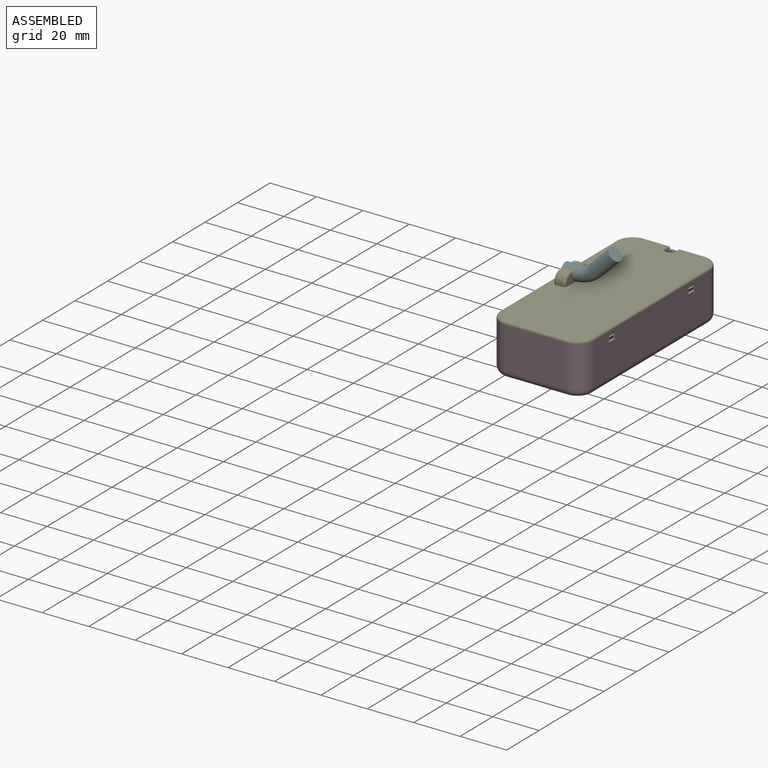
[diagram: assembled view]
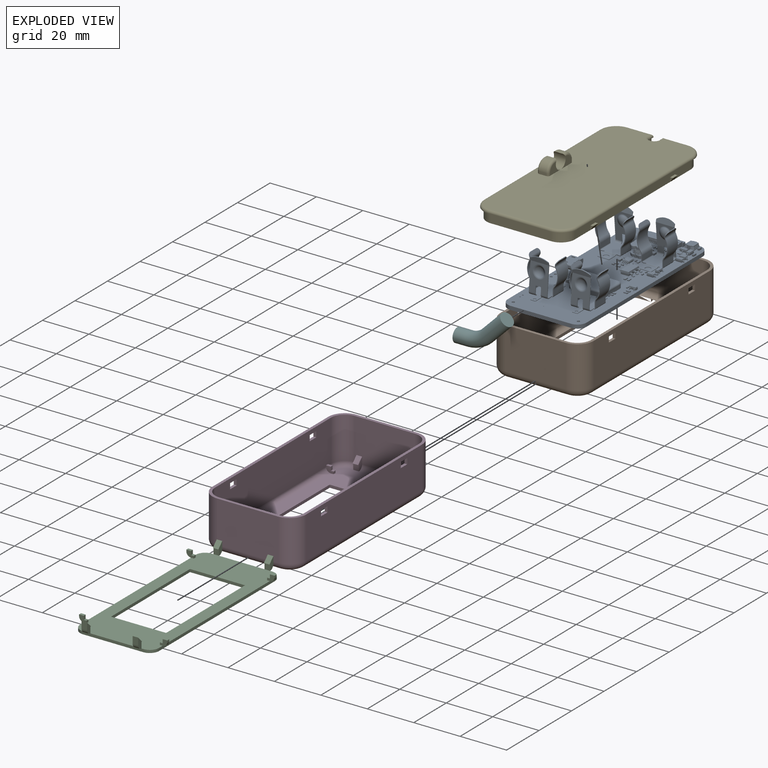
[diagram: exploded view]
GUIDED TOUR — FREECAD ASSEMBLY "enclosure"

This assembly has 6 components, labeled P0..P5 below (a component is one placed body or linked part; the same part can appear more than once), held together by 0 modeled joints plus 9 derived contact edges. A joint is a constraint between two components; its type names the relative motion it leaves free:
  CONTACT — a derived adjacency edge — the two components touch in the source model (clearance under 2% of the assembly's diagonal); it is measured from the geometry, not a modeled constraint.
Axis/direction vectors are unit vectors and 'through' points are millimeter coordinates, both in the assembly's world frame.

MATES
  1. CONTACT "contact_0_1": P0 <-> P1, contact direction (0.000, 0.000, -1.000) through (34.08, -2.57, -2.10) mm (derived from contact, not a modeled constraint)
  2. CONTACT "contact_0_2": P0 <-> P2, contact direction (0.000, 0.000, -1.000) through (26.88, 72.40, 0.03) mm (derived from contact, not a modeled constraint)
  3. CONTACT "contact_0_3": P0 <-> P3, contact direction (0.000, 0.000, -1.000) through (29.35, 72.35, 0.17) mm (derived from contact, not a modeled constraint)
  4. CONTACT "contact_1_2": P1 <-> P2, contact direction (0.000, -1.000, 0.000) through (30.00, 73.00, -3.80) mm (derived from contact, not a modeled constraint)
  5. CONTACT "contact_1_3": P1 <-> P3, contact direction (0.000, -1.000, 0.000) through (9.00, 73.16, -3.80) mm (derived from contact, not a modeled constraint)
  6. CONTACT "contact_1_4": P1 <-> P4, contact direction (-0.170, 0.000, 0.985) through (30.00, 75.00, 17.40) mm (derived from contact, not a modeled constraint)
  7. CONTACT "contact_2_3": P2 <-> P3, contact direction (0.000, 1.000, 0.000) through (0.00, 67.20, -2.60) mm (derived from contact, not a modeled constraint)
  8. CONTACT "contact_3_4": P3 <-> P4, contact direction (-0.170, 0.000, 0.985) through (32.83, 74.29, 17.40) mm (derived from contact, not a modeled constraint)
  9. CONTACT "contact_4_5": P4 <-> P5, contact direction (0.000, -1.000, 0.000) through (0.00, 36.32, 20.86) mm (derived from contact, not a modeled constraint)

ASSEMBLY ORDER
  1. P1 — the base component [order heuristic]
  2. P0 [order heuristic]
  3. P2 [order heuristic]
  4. P3 [order heuristic]
  5. P4 [order heuristic]
  6. P5 [order heuristic]
Order-tag legend:
  [order heuristic] — this assembly is geometrically interlocked (no collision-free removal order exists), so components are listed in mate-graph order; insertion feasibility is not verified.

Of the 6 components, 5 carry a construction recipe — the FreeCAD feature program (sketches with constraints, then the solid features that consume them) that regenerates the part from scratch, quoted from this document or from the linked companion document it references; the rest are supplied as boundary geometry only. The tour below walks the components in assembly order: each is shown spotlighted twice — in the assembled view, then in the exploded view, where a leader line traces a displaced component back to its assembled socket (components that stay in place when exploded have no leader line; saturated green if recipe-attached, orange if geometry-only; every other component desaturated gray) — followed by its recipe or geometry summary and the mates that hold it.
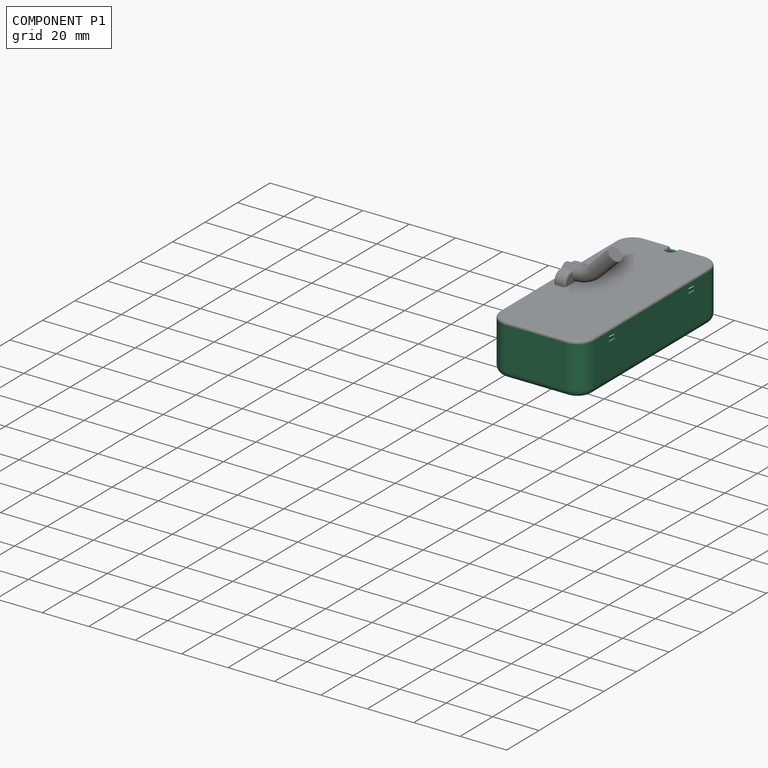
[diagram: component P1 — assembled]
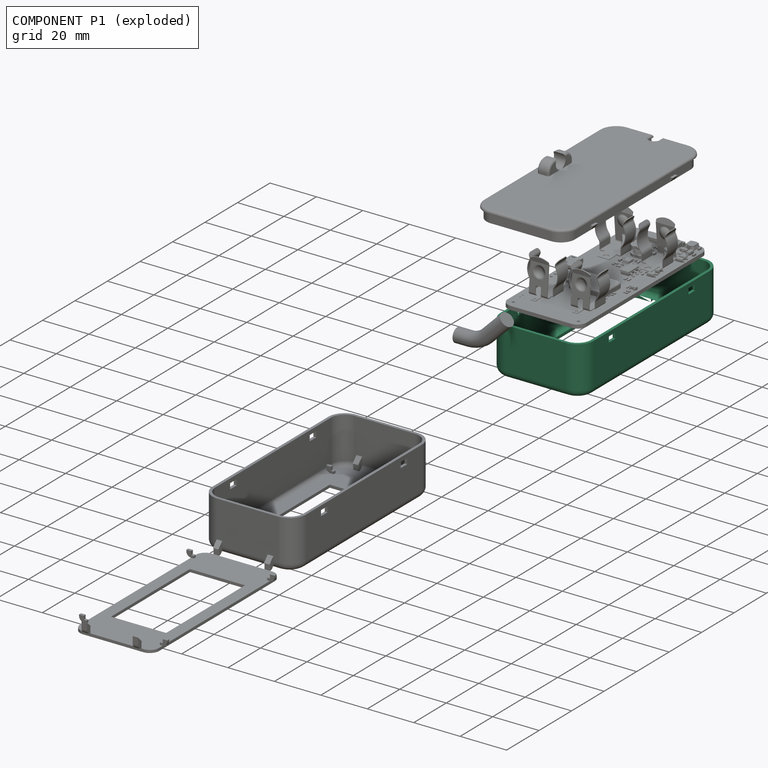
[diagram: component P1 — exploded]
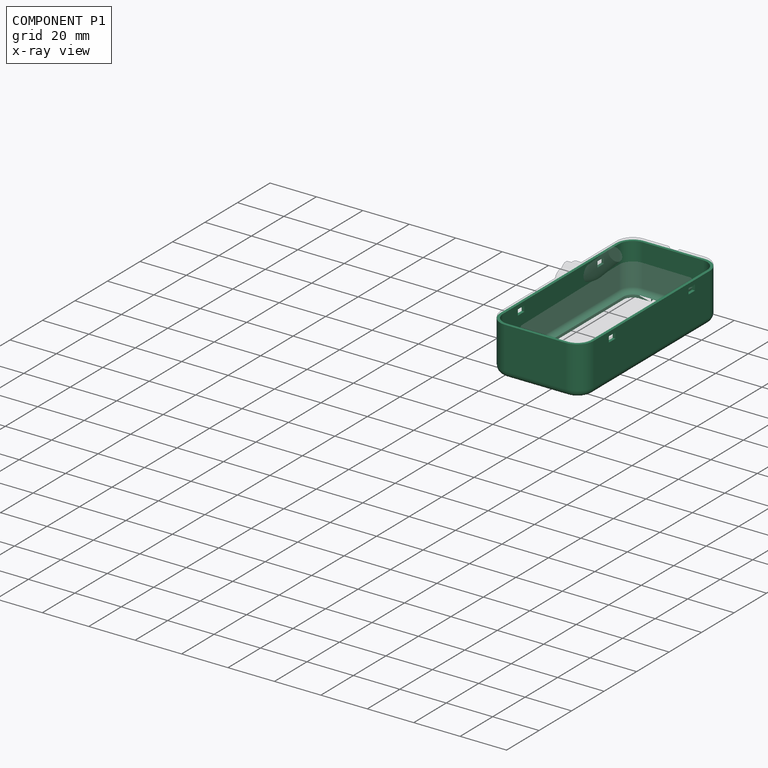
[diagram: component P1 — x-ray view]
COMPONENT P1 — recipe-attached ("sides", modeled in this document).
Held by: resting contact with P0 (derived edge); resting contact with P2 (derived edge); resting contact with P3 (derived edge); resting contact with P4 (derived edge).
Construction recipe (the document's own serialized feature program — sketch geometry with constraints, then the solid features built on it; lengths are millimeters unless a unit is written):

FEATURE [Part::SubShapeBinder] Import  label="Import(Pcb_47af)"
  BindCopyOnChange = 0
  BindMode = 0
  ClaimChildren = false
  Context = -> Body [Import.]
  EdgeTolerance = 1e-06
  FillStyle = 0
  Fuse = false
  MakeFace = false
  MergeEdges = true
  OffsetFill = false
  OffsetIntersection = false
  OffsetJoinType = 0
  OffsetOpenResult = false
  Outline = false
  PartialLoad = false
  Relative = true
  SplitEdges = false
  Support = -> [Board_47af[Board_Geoms_47af.Pcb_47af.]]
  TightBound = false
  TreeRank = 280
  _Version = 8
FEATURE [Sketcher::SketchObject] Sketch  label="master"
  ArcFitTolerance = 1e-06
  AttachmentSupport = -> [XY_Plane001]
  ExternalBSplineMaxDegree = 5
  ExternalBSplineTolerance = 0.0001
  ExternalGeometry = -> [Import]
  FullyConstrained = true
  InternalTolerance = 1e-06
  MakeInternals = false
  MapMode = 5
  Support = -> [XY_Plane001]
  TreeRank = 279
  sketch-geometry (12):
    g0: LineSegment StartX=5.145 StartY=58.05 StartZ=0 EndX=28.855 EndY=58.05 EndZ=0
    g1: LineSegment StartX=28.855 StartY=58.05 StartZ=0 EndX=28.855 EndY=9.5 EndZ=0
    g2: LineSegment StartX=28.855 StartY=9.5 StartZ=0 EndX=5.145 EndY=9.5 EndZ=0
    g3: LineSegment StartX=5.145 StartY=9.5 StartZ=0 EndX=5.145 EndY=58.05 EndZ=0
    g4: LineSegment [constr] StartX=28.855 StartY=58.05 StartZ=0 EndX=34 EndY=58.05 EndZ=0
    g5: LineSegment [constr] StartX=5.145 StartY=58.05 StartZ=0 EndX=0 EndY=58.05 EndZ=0
    g6: LineSegment StartX=9 StartY=73 StartZ=0 EndX=25.5 EndY=73 EndZ=0
    g7: LineSegment StartX=9 StartY=73 StartZ=0 EndX=4 EndY=73 EndZ=0
    g8: LineSegment StartX=0 StartY=69 StartZ=0 EndX=0 EndY=-2.17157 EndZ=0
    g9: LineSegment StartX=4 StartY=-6.17157 StartZ=0 EndX=30 EndY=-6.17157 EndZ=0
    g10: LineSegment StartX=34 StartY=-2.17157 StartZ=0 EndX=34 EndY=69 EndZ=0
    g11: LineSegment StartX=25.5 StartY=73 StartZ=0 EndX=30 EndY=73 EndZ=0
  constraints (30):
    c: Coincident(g0,g1)
    c: Coincident(g1,g2)
    c: Coincident(g2,g3)
    c: Coincident(g3,g0)
    c: Horizontal(g0)
    c: Horizontal(g2)
    c: Vertical(g1)
    c: Vertical(g3)
    c: DistanceY(g1,g1) = 48.55
    c: DistanceX(g0,g0) = 23.71
    c: Coincident(g4,g0)
    c: PointOnObject(g4,g-5)
    c: Horizontal(g4)
    c: Coincident(g5,g0)
    c: PointOnObject(g5,g-3)
    c: Horizontal(g5)
    c: Equal(g5,g4)
    c: Coincident(g6,g-8)
    c: Coincident(g6,g-10)
    c: Coincident(g7,g6)
    c: Coincident(g9,g-4)
    c: Coincident(g10,g-5)
    c: Coincident(g11,g6)
    c: Coincident(g11,g-6)
    c: DistanceY(g0,g6) = 14.95
    c: Coincident(g7,g-11)
    c: Coincident(g8,g-11)
    c: Coincident(g10,g-14)
    c: Coincident(g9,g-13)
    c: Coincident(g8,g-12)
FEATURE [Sketcher::SketchObject] Sketch001  label="side profile"
  ArcFitTolerance = 1e-06
  AttachmentSupport = -> [XZ_Plane001]
  ExternalBSplineMaxDegree = 5
  ExternalBSplineTolerance = 0.0001
  ExternalGeometry = -> [Import]
  FullyConstrained = true
  InternalTolerance = 1e-06
  MakeInternals = false
  MapMode = 5
  Placement = pos=(0,0,0) rot=(1,0,0;1.5708rad)
  Support = -> [XZ_Plane001]
  TreeRank = 281
  sketch-geometry (6):
    g0: LineSegment StartX=0 StartY=-2.6 StartZ=0 EndX=0 EndY=-3.8 EndZ=0
    g1: ArcOfCircle CenterX=0 CenterY=-0.6 CenterZ=0 NormalX=0 NormalY=0 NormalZ=1 AngleXU=0 Radius=3.2 StartAngle=3.14159 EndAngle=4.71239
    g2: ArcOfCircle CenterX=0 CenterY=-0.6 CenterZ=0 NormalX=0 NormalY=0 NormalZ=1 AngleXU=0 Radius=2 StartAngle=3.14159 EndAngle=4.71239
    g3: LineSegment StartX=-2 StartY=-0.6 StartZ=0 EndX=-2 EndY=17.4 EndZ=0
    g4: LineSegment StartX=-3.2 StartY=-0.6 StartZ=0 EndX=-3.2 EndY=17.4 EndZ=0
    g5: LineSegment StartX=-3.2 StartY=17.4 StartZ=0 EndX=-2 EndY=17.4 EndZ=0
  constraints (19):
    c: PointOnObject(g0,g-2)
    c: PointOnObject(g0,g-2)
    c: DistanceY(g0,g0) = 1.2
    c: DistanceY(g0,g-4) = 1
    c: PointOnObject(g1,g-2)
    c: Coincident(g1,g0)
    c: Coincident(g2,g1)
    c: Coincident(g2,g0)
    c: Radius(g2) = 2
    c: Horizontal(g1,g2)
    c: Horizontal(g2,g1)
    c: Coincident(g3,g2)
    c: Vertical(g3)
    c: Coincident(g4,g1)
    c: Vertical(g4)
    c: Horizontal(g3,g4)
    c: Coincident(g5,g4)
    c: Coincident(g5,g3)
    c: DistanceY(g4,g4) = 18
FEATURE [Sketcher::SketchObject] Sketch002  label="tool path"
  ArcFitTolerance = 1e-06
  AttachmentSupport = -> [XY_Plane001]
  ExternalBSplineMaxDegree = 5
  ExternalBSplineTolerance = 0.0001
  ExternalGeometry = -> [Sketch]
  FullyConstrained = true
  InternalTolerance = 1e-06
  MakeInternals = false
  MapMode = 5
  Support = -> [XY_Plane001]
  TreeRank = 282
FEATURE [PartDesign::AdditivePipe] Pipe
  AddSubType = 0
  AuxilleryCurvelinear = true
  AuxillerySpineTangent = false
  Binormal = (0,0,0)
  ClaimChildren = false
  Fit = 0
  FitJoin = 0
  InnerFit = 0
  InnerFitJoin = 0
  Linearize = true
  Mode = 0
  MoveProfile = false
  NewSolid = false
  Profile = -> Sketch001
  Refine = true
  RotateProfile = false
  Spine = -> Sketch002
  SpineTangent = false
  Suppress = false
  Transformation = 0
  Transition = 1
  TreeRank = 283
  _ProfileBasedVersion = 2
FEATURE [PartDesign::Plane] DatumPlane011
  AttachmentSupport = -> [Pipe]
  Length = 79.1716
  MapMode = 5
  MinimumLength = 10
  MinimumWidth = 10
  Placement = pos=(-3.2,0,0) rot=(0.57735,-0.57735,-0.57735;2.0944rad)
  ResizeMode = 0
  Support = -> [Pipe]
  TreeRank = 417
  Width = 10
FEATURE [Sketcher::SketchObject] Sketch016  label="clip holes"
  ArcFitTolerance = 1e-06
  AttachmentSupport = -> [DatumPlane011]
  ExternalBSplineMaxDegree = 5
  ExternalBSplineTolerance = 0.0001
  ExternalGeometry = -> [Pipe]
  FullyConstrained = true
  InternalTolerance = 1e-06
  MakeInternals = false
  MapMode = 5
  Placement = pos=(-3.2,0,0) rot=(0.57735,-0.57735,-0.57735;2.0944rad)
  Support = -> [DatumPlane011]
  TreeRank = 418
  sketch-geometry (10):
    g0: LineSegment StartX=-59.9142 StartY=15.6 StartZ=0 EndX=-55.9142 EndY=15.6 EndZ=0
    g1: LineSegment StartX=-55.9142 StartY=15.6 StartZ=0 EndX=-55.9142 EndY=13.2 EndZ=0
    g2: LineSegment StartX=-55.9142 StartY=13.2 StartZ=0 EndX=-59.9142 EndY=13.2 EndZ=0
    g3: LineSegment StartX=-59.9142 StartY=13.2 StartZ=0 EndX=-59.9142 EndY=15.6 EndZ=0
    g4: LineSegment StartX=-10.9142 StartY=15.6 StartZ=0 EndX=-6.91421 EndY=15.6 EndZ=0
    g5: LineSegment StartX=-6.91421 StartY=15.6 StartZ=0 EndX=-6.91421 EndY=13.2 EndZ=0
    g6: LineSegment StartX=-6.91421 StartY=13.2 StartZ=0 EndX=-10.9142 EndY=13.2 EndZ=0
    g7: LineSegment StartX=-10.9142 StartY=13.2 StartZ=0 EndX=-10.9142 EndY=15.6 EndZ=0
    g8: LineSegment [constr] StartX=-59.9142 StartY=15.6 StartZ=0 EndX=-69 EndY=15.6 EndZ=0
    g9: LineSegment [constr] StartX=-6.91421 StartY=15.6 StartZ=0 EndX=2.17157 EndY=15.6 EndZ=0
  constraints (30):
    c: Coincident(g0,g1)
    c: Coincident(g1,g2)
    c: Coincident(g2,g3)
    c: Coincident(g3,g0)
    c: Horizontal(g0)
    c: Horizontal(g2)
    c: Vertical(g1)
    c: Vertical(g3)
    c: Coincident(g4,g5)
    c: Coincident(g5,g6)
    c: Coincident(g6,g7)
    c: Coincident(g7,g4)
    c: Horizontal(g4)
    c: Horizontal(g6)
    c: Vertical(g5)
    c: Vertical(g7)
    c: Equal(g4,g0)
    c: Equal(g5,g1)
    c: DistanceX(g0,g4) = 45
    c: DistanceX(g2,g2) = 4
    c: DistanceY(g5,g5) = 2.4
    c: Coincident(g8,g0)
    c: PointOnObject(g8,g-3)
    c: Horizontal(g8)
    c: Coincident(g9,g4)
    c: PointOnObject(g9,g-5)
    c: Horizontal(g9)
    c: Equal(g9,g8)
    c: DistanceY(g0,g-4) = 1.8
    c: Horizontal(g4,g0)
FEATURE [PartDesign::Pocket] Pocket003  label="clip holes001"
  AddSubType = 1
  AutoTaperInnerAngle = true
  BaseFeature = -> Pipe
  CheckUpToFaceLimits = true
  ClaimChildren = false
  Fit = 0
  FitJoin = 0
  InnerFit = 0
  InnerFitJoin = 0
  Length = 5
  Length2 = 100
  Linearize = true
  NewSolid = false
  Profile = -> Sketch016
  Refine = true
  Suppress = false
  TaperInnerAngle = 0
  TaperInnerAngleRev = 0
  TreeRank = 419
  Type = 1
  _ProfileBasedVersion = 1
  _Version = 1
FEATURE [PartDesign::Body] Body  label="sides"
  AutoGroupSolids = false
  ClaimAllChildren = false
  ExportMode = 0
  Group = -> [Sketch,Import,Sketch001,Sketch002,Pipe,DatumPlane011,Sketch016,Pocket003]
  Origin = -> Origin004
  Tip = -> Pocket003
  TreeRank = 278
  _ExportChildren = -> [Sketch,Import,Pipe,DatumPlane011,Pocket003]
  _GroupVersion = 1
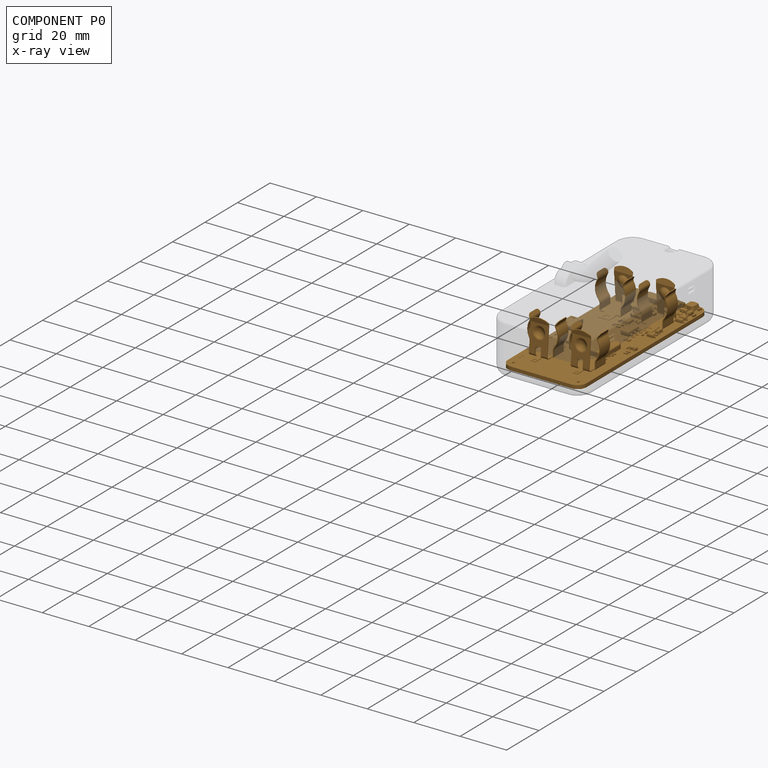
[diagram: component P0 — x-ray view]
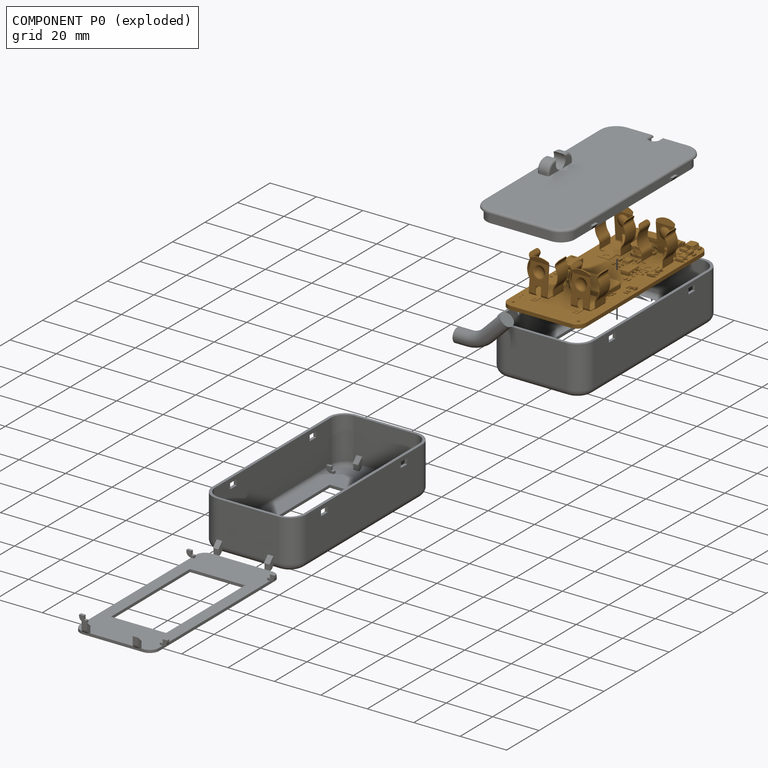
[diagram: component P0 — exploded]
COMPONENT P0 — geometry summary ("sensor-epaper"; no construction recipe available for this part):
  bounding box: 79.2 x 34.0 x 17.1 mm
  tessellated surface: 170,718 triangles
  volume: 5196 mm^3 (11% of its bounding box)
Held by: resting contact with P1 (derived edge); resting contact with P2 (derived edge); resting contact with P3 (derived edge).
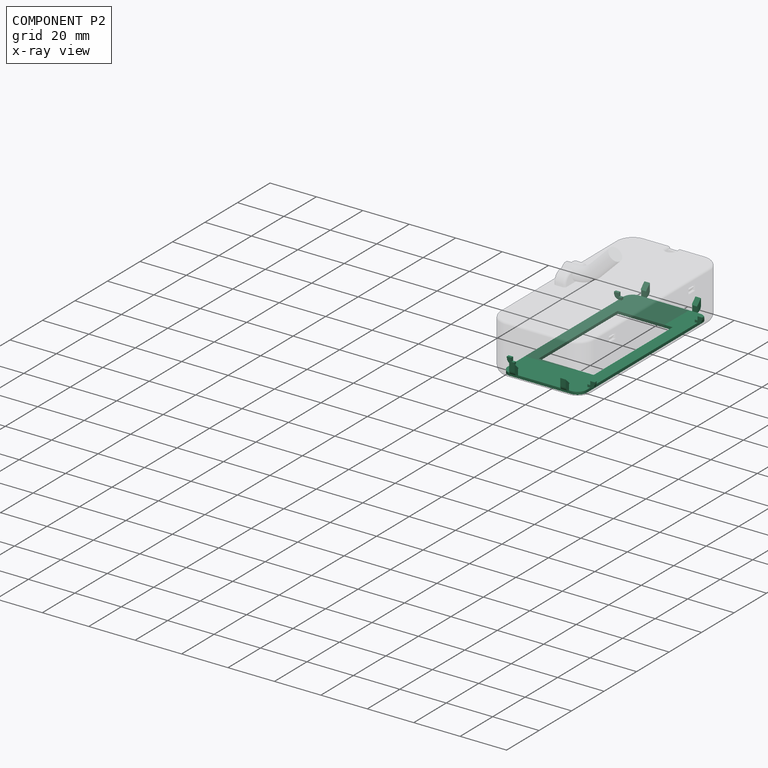
[diagram: component P2 — x-ray view]
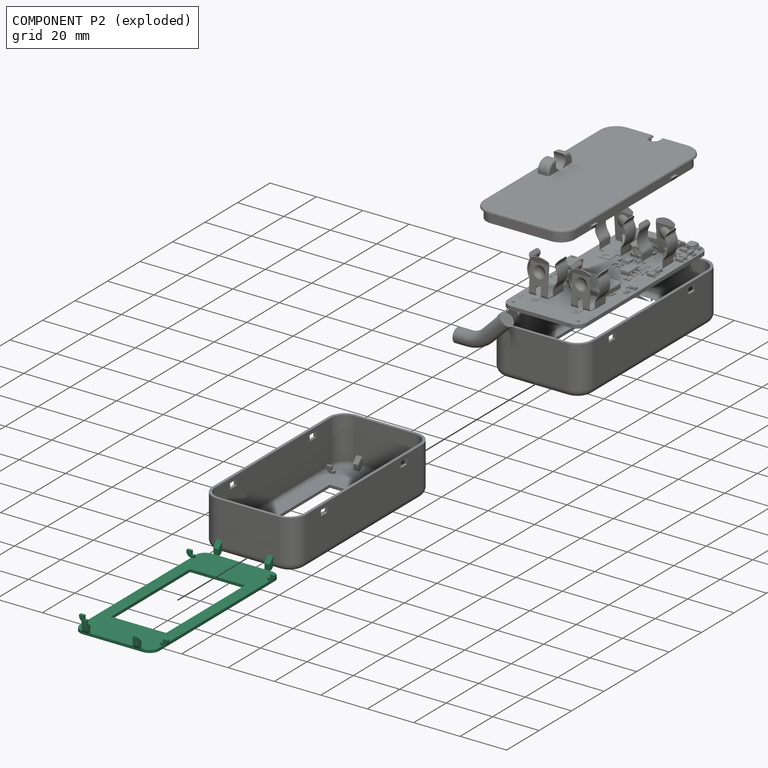
[diagram: component P2 — exploded]
COMPONENT P2 — recipe-attached ("face", modeled in this document).
Held by: resting contact with P0 (derived edge); resting contact with P1 (derived edge); resting contact with P3 (derived edge).
Construction recipe (the document's own serialized feature program — sketch geometry with constraints, then the solid features built on it; lengths are millimeters unless a unit is written):

FEATURE [Part::SubShapeBinder] Import001  label="Import001(master)"
  BindCopyOnChange = 0
  BindMode = 0
  ClaimChildren = false
  Context = -> Body001 [Import001.]
  EdgeTolerance = 1e-06
  FillStyle = 0
  Fuse = false
  MakeFace = false
  MergeEdges = true
  OffsetFill = false
  OffsetIntersection = false
  OffsetJoinType = 0
  OffsetOpenResult = false
  Outline = false
  PartialLoad = false
  Relative = true
  SplitEdges = false
  Support = -> [Sketch]
  TightBound = false
  TreeRank = 298
  _Version = 8
FEATURE [Sketcher::SketchObject] Sketch003
  ArcFitTolerance = 1e-06
  AttachmentOffset = pos=(0,0,-2.6) rot=(0,0,1;0rad)
  AttachmentSupport = -> [XY_Plane002]
  ExternalBSplineMaxDegree = 5
  ExternalBSplineTolerance = 0.0001
  ExternalGeometry = -> [Import001]
  FullyConstrained = true
  InternalTolerance = 1e-06
  MakeInternals = false
  MapMode = 5
  Placement = pos=(0,0,-2.6) rot=(0,0,1;0rad)
  Support = -> [XY_Plane002]
  TreeRank = 297
FEATURE [PartDesign::Pad] Pad
  AddSubType = 0
  AlongSketchNormal = false
  AutoTaperInnerAngle = true
  CheckUpToFaceLimits = true
  ClaimChildren = false
  Direction = (0,0,1)
  Fit = 0
  FitJoin = 0
  InnerFit = 0
  InnerFitJoin = 0
  Length = 1.2
  Length2 = 100
  Linearize = true
  NewSolid = false
  Profile = -> Sketch003
  Refine = true
  Reversed = true
  Suppress = false
  TaperInnerAngle = 0
  TaperInnerAngleRev = 0
  TreeRank = 299
  Type = 0
  _ProfileBasedVersion = 1
FEATURE [PartDesign::Plane] DatumPlane
  AttachmentSupport = -> [Pad]
  Length = 38
  MapMode = 5
  MinimumLength = 10
  MinimumWidth = 10
  Placement = pos=(0,0,-3.8) rot=(1,0,0;3.14159rad)
  ResizeMode = 0
  Support = -> [Pad]
  TreeRank = 301
  Width = 79.1716
FEATURE [Sketcher::SketchObject] Sketch004  label="window001"
  ArcFitTolerance = 1e-06
  AttachmentSupport = -> [DatumPlane]
  ExternalBSplineMaxDegree = 5
  ExternalBSplineTolerance = 0.0001
  ExternalGeometry = -> [Import001]
  FullyConstrained = true
  InternalTolerance = 1e-06
  MakeInternals = false
  MapMode = 5
  Placement = pos=(0,0,-3.8) rot=(1,0,0;3.14159rad)
  Support = -> [DatumPlane]
  TreeRank = 300
FEATURE [PartDesign::Pocket] Pocket  label="window"
  AddSubType = 1
  AutoTaperInnerAngle = true
  BaseFeature = -> Pad
  CheckUpToFaceLimits = true
  ClaimChildren = false
  Fit = 0
  FitJoin = 0
  InnerFit = 0
  InnerFitJoin = 0
  Length = 5
  Length2 = 100
  Linearize = true
  NewSolid = false
  Profile = -> Sketch004
  Refine = true
  Suppress = false
  TaperInnerAngle = 0
  TaperInnerAngleRev = 0
  TreeRank = 302
  Type = 2
  _ProfileBasedVersion = 1
  _Version = 1
FEATURE [Sketcher::SketchObject] Sketch005  label="face stoppers001"
  ArcFitTolerance = 1e-06
  AttachmentSupport = -> [DatumPlane]
  ExternalBSplineMaxDegree = 5
  ExternalBSplineTolerance = 0.0001
  ExternalGeometry = -> [Pocket]
  FullyConstrained = true
  InternalTolerance = 1e-06
  MakeInternals = false
  MapMode = 5
  Placement = pos=(0,0,-3.8) rot=(1,0,0;3.14159rad)
  Support = -> [DatumPlane]
  TreeRank = 304
  sketch-geometry (12):
    g0: ArcOfCircle CenterX=4 CenterY=2.17157 CenterZ=0 NormalX=0 NormalY=0 NormalZ=1 AngleXU=0 Radius=3.2 StartAngle=1.5708 EndAngle=3.14159
    g1: LineSegment StartX=4 StartY=6.17157 StartZ=0 EndX=4 EndY=5.37157 EndZ=0
    g2: LineSegment StartX=0 StartY=2.17157 StartZ=0 EndX=0.8 EndY=2.17157 EndZ=0
    g3: ArcOfCircle CenterX=30 CenterY=2.17157 CenterZ=0 NormalX=0 NormalY=0 NormalZ=1 AngleXU=0 Radius=3 StartAngle=1.4197e-07 EndAngle=1.5708
    g4: LineSegment StartX=30 StartY=6.17157 StartZ=0 EndX=30 EndY=5.17157 EndZ=0
    g5: LineSegment StartX=33 StartY=2.17157 StartZ=0 EndX=34 EndY=2.17157 EndZ=0
    g6: ArcOfCircle CenterX=30 CenterY=-69 CenterZ=0 NormalX=0 NormalY=0 NormalZ=1 AngleXU=0 Radius=3 StartAngle=4.71239 EndAngle=6.28319
    g7: LineSegment StartX=30 StartY=-72 StartZ=0 EndX=30 EndY=-73 EndZ=0
    g8: LineSegment StartX=33 StartY=-69 StartZ=0 EndX=34 EndY=-69 EndZ=0
    g9: ArcOfCircle CenterX=4 CenterY=-69 CenterZ=0 NormalX=0 NormalY=0 NormalZ=1 AngleXU=0 Radius=3 StartAngle=3.14159 EndAngle=4.71239
    g10: LineSegment StartX=0 StartY=-69 StartZ=0 EndX=1 EndY=-69 EndZ=0
    g11: LineSegment StartX=4 StartY=-72 StartZ=0 EndX=4 EndY=-73 EndZ=0
  constraints (32):
    c: Coincident(g0,g-4)
    c: Coincident(g1,g-4)
    c: Coincident(g1,g0)
    c: Vertical(g1)
    c: Coincident(g2,g-4)
    c: Coincident(g2,g0)
    c: Horizontal(g2)
    c: DistanceY(g1,g1) = 0.8
    c: Coincident(g3,g-3)
    c: Coincident(g4,g-3)
    c: Coincident(g4,g3)
    c: Coincident(g5,g3)
    c: Coincident(g5,g-3)
    c: Horizontal(g5)
    c: Vertical(g4)
    c: DistanceY(g4,g4) = 1
    c: Coincident(g6,g-5)
    c: Coincident(g7,g6)
    c: Coincident(g7,g-5)
    c: Vertical(g7)
    c: Coincident(g8,g6)
    c: Coincident(g8,g-5)
    c: Horizontal(g8)
    c: DistanceY(g7,g7) = 1
    c: Coincident(g9,g-6)
    c: Coincident(g10,g-6)
    c: Coincident(g10,g9)
    c: Horizontal(g10)
    c: Coincident(g11,g9)
    c: Coincident(g11,g-6)
    c: Vertical(g11)
    c: DistanceY(g11,g11) = 1
FEATURE [Part::SubShapeBinder] Import002  label="Import002(XZ_Plane001)"
  BindCopyOnChange = 0
  BindMode = 0
  ClaimChildren = false
  Context = -> Body001 [Import002.]
  EdgeTolerance = 1e-06
  FillStyle = 0
  Fuse = false
  MakeFace = false
  MergeEdges = true
  OffsetFill = false
  OffsetIntersection = false
  OffsetJoinType = 0
  OffsetOpenResult = false
  Outline = false
  PartialLoad = false
  Relative = true
  SplitEdges = false
  Support = -> [Origin004[XZ_Plane001.]]
  TightBound = false
  TreeRank = 308
  _Version = 8
FEATURE [Part::SubShapeBinder] Import003  label="Import003(side profile)"
  BindCopyOnChange = 0
  BindMode = 0
  ClaimChildren = false
  Context = -> Body001 [Import003.]
  EdgeTolerance = 1e-06
  FillStyle = 0
  Fuse = false
  MakeFace = false
  MergeEdges = true
  OffsetFill = false
  OffsetIntersection = false
  OffsetJoinType = 0
  OffsetOpenResult = false
  Outline = false
  PartialLoad = false
  Relative = true
  SplitEdges = false
  Support = -> [Sketch001]
  TightBound = false
  TreeRank = 310
  _Version = 8
FEATURE [PartDesign::Plane] DatumPlane001
  AttachmentOffset = pos=(0,0,6) rot=(0,0,1;0rad)
  AttachmentSupport = -> [YZ_Plane002]
  Length = 79.1716
  MapMode = 5
  MinimumLength = 10
  MinimumWidth = 10
  Placement = pos=(6,-1.3e-15,1.3e-15) rot=(0.57735,0.57735,0.57735;2.0944rad)
  ResizeMode = 0
  Support = -> [YZ_Plane002]
  TreeRank = 333
  Width = 10
FEATURE [Part::SubShapeBinder] Import012  label="Import012(Pcb_47af)"
  BindCopyOnChange = 0
  BindMode = 0
  ClaimChildren = false
  Context = -> Body001 [Import012.]
  EdgeTolerance = 1e-06
  FillStyle = 0
  Fuse = false
  MakeFace = false
  MergeEdges = true
  OffsetFill = false
  OffsetIntersection = false
  OffsetJoinType = 0
  OffsetOpenResult = false
  Outline = false
  PartialLoad = false
  Relative = true
  SplitEdges = false
  Support = -> [Board_47af[Board_Geoms_47af.Pcb_47af.]]
  TightBound = false
  TreeRank = 430
  _Version = 8
FEATURE [Sketcher::SketchObject] Sketch006  label="locators001"
  ArcFitTolerance = 1e-06
  AttachmentSupport = -> [Import002]
  ExternalBSplineMaxDegree = 5
  ExternalBSplineTolerance = 0.0001
  ExternalGeometry = -> [Import003,Import001,Import012]
  FullyConstrained = true
  InternalTolerance = 1e-06
  MakeInternals = false
  MapMode = 5
  Placement = pos=(0,0,0) rot=(1,0,0;1.5708rad)
  Support = -> [Import002]
  TreeRank = 311
  sketch-geometry (14):
    g0: LineSegment StartX=0 StartY=0 StartZ=0 EndX=-2 EndY=0 EndZ=0
    g1: LineSegment StartX=-2 StartY=0 StartZ=0 EndX=-2 EndY=-0.6 EndZ=0
    g2: LineSegment StartX=36 StartY=7.4e-15 StartZ=0 EndX=36 EndY=-0.6 EndZ=0
    g3: LineSegment StartX=34 StartY=7.4e-15 StartZ=0 EndX=36 EndY=7.4e-15 EndZ=0
    g4: LineSegment [constr] StartX=0 StartY=-0.6 StartZ=0 EndX=34 EndY=-0.6 EndZ=0
    g5: ArcOfCircle CenterX=34 CenterY=-0.6 CenterZ=0 NormalX=0 NormalY=0 NormalZ=1 AngleXU=0 Radius=2 StartAngle=4.71239 EndAngle=6.28319
    g6: LineSegment StartX=0 StartY=0 StartZ=0 EndX=0 EndY=-1.6 EndZ=0
    g7: LineSegment StartX=0 StartY=-1.6 StartZ=0 EndX=1.2 EndY=-1.6 EndZ=0
    g8: LineSegment StartX=1.2 StartY=-1.6 StartZ=0 EndX=1.2 EndY=-2.6 EndZ=0
    g9: LineSegment StartX=-4e-16 StartY=-2.6 StartZ=0 EndX=1.2 EndY=-2.6 EndZ=0
    g10: LineSegment StartX=34 StartY=-1.6 StartZ=0 EndX=32.8 EndY=-1.6 EndZ=0
    g11: LineSegment StartX=32.8 StartY=-1.6 StartZ=0 EndX=32.8 EndY=-2.6 EndZ=0
    g12: LineSegment StartX=32.8 StartY=-2.6 StartZ=0 EndX=34 EndY=-2.6 EndZ=0
    g13: LineSegment StartX=34 StartY=0 StartZ=0 EndX=34 EndY=-1.6 EndZ=0
  constraints (38):
    c: PointOnObject(g0,g-1)
    c: PointOnObject(g0,g-4)
    c: Coincident(g1,g0)
    c: Coincident(g1,g-4)
    c: Coincident(g2,g3)
    c: Coincident(g4,g-3)
    c: Horizontal(g4)
    c: Vertical(g4,g-5)
    c: Coincident(g3,g-5)
    c: Coincident(g5,g4)
    c: Coincident(g5,g2)
    c: Equal(g5,g-3)
    c: Equal(g3,g0)
    c: Horizontal(g3)
    c: Coincident(g6,g0)
    c: Coincident(g6,g-6)
    c: Vertical(g6)
    c: Coincident(g7,g6)
    c: Coincident(g8,g7)
    c: Vertical(g8)
    c: Coincident(g9,g-3)
    c: Coincident(g9,g8)
    c: Horizontal(g9)
    c: Horizontal(g7)
    c: Horizontal(g0)
    c: DistanceX(g9,g9) = 1.2
    c: Coincident(g10,g-7)
    c: Horizontal(g10)
    c: Coincident(g11,g10)
    c: Vertical(g11)
    c: Coincident(g12,g11)
    c: Coincident(g12,g5)
    c: Horizontal(g12)
    c: Equal(g2,g1)
    c: Vertical(g5,g10)
    c: Equal(g10,g7)
    c: Coincident(g13,g3)
    c: Coincident(g13,g10)
FEATURE [PartDesign::Pad] Pad002  label="locators"
  AddSubType = 0
  AlongSketchNormal = false
  AutoTaperInnerAngle = true
  BaseFeature = -> Pocket
  CheckUpToFaceLimits = true
  ClaimChildren = false
  Direction = (0,-1,2e-16)
  Fit = 0
  FitJoin = 0
  InnerFit = 0
  InnerFitJoin = 0
  Length = 1.2
  Length2 = 100
  Linearize = true
  NewSolid = false
  Profile = -> Sketch006
  Refine = true
  Reversed = true
  Suppress = false
  TaperInnerAngle = 0
  TaperInnerAngleRev = 0
  TreeRank = 312
  Type = 0
  _ProfileBasedVersion = 1
FEATURE [PartDesign::LinearPattern] LinearPattern
  AddSubType = 0
  BaseFeature = -> Pad002
  CopyShape = false
  Direction = -> Sketch006 [N_Axis]
  Length = 66
  NewSolid = false
  Occurrences = 2
  OriginalSubs = -> [Pad002]
  Originals = -> [Pad002]
  ParallelTransform = true
  Refine = true
  Reversed = true
  SubTransform = true
  Suppress = false
  TreeRank = 313
  _Version = 3
FEATURE [Sketcher::SketchObject] Sketch007
  ArcFitTolerance = 1e-06
  AttachmentSupport = -> [DatumPlane001]
  ExternalBSplineMaxDegree = 5
  ExternalBSplineTolerance = 0.0001
  ExternalGeometry = -> [Import001,LinearPattern]
  FullyConstrained = true
  InternalTolerance = 1e-06
  MakeInternals = false
  MapMode = 5
  Placement = pos=(6,-1.3e-15,1.3e-15) rot=(0.57735,0.57735,0.57735;2.0944rad)
  Support = -> [DatumPlane001]
  TreeRank = 334
  sketch-geometry (15):
    g0: LineSegment [constr] StartX=-6.17157 StartY=-5.1e-15 StartZ=0 EndX=-6.17157 EndY=-2.6 EndZ=0
    g1: ArcOfCircle CenterX=-6.17157 CenterY=-0.6 CenterZ=0 NormalX=0 NormalY=0 NormalZ=1 AngleXU=0 Radius=2 StartAngle=3.14159 EndAngle=4.71239
    g2: LineSegment StartX=-8.17157 StartY=-0.6 StartZ=0 EndX=-8.17157 EndY=0 EndZ=0
    g3: LineSegment StartX=75 StartY=-0.6 StartZ=0 EndX=75 EndY=0 EndZ=0
    g4: ArcOfCircle CenterX=73 CenterY=-0.6 CenterZ=0 NormalX=0 NormalY=0 NormalZ=1 AngleXU=0 Radius=2 StartAngle=4.71239 EndAngle=6.28319
    g5: LineSegment StartX=-6.17157 StartY=-0.6 StartZ=0 EndX=-6.17157 EndY=-5.1e-15 EndZ=0
    g6: LineSegment StartX=-6.17157 StartY=-0.6 StartZ=0 EndX=-6.17157 EndY=-2.6 EndZ=0
    g7: LineSegment StartX=73 StartY=-2.6 StartZ=0 EndX=73 EndY=-0.6 EndZ=0
    g8: LineSegment StartX=73 StartY=-0.6 StartZ=0 EndX=73 EndY=1.24e-14 EndZ=0
    g9: LineSegment StartX=-8.17157 StartY=0 StartZ=0 EndX=-8.17157 EndY=2.4 EndZ=0
    g10: LineSegment StartX=-8.17157 StartY=2.4 StartZ=0 EndX=-5.77157 EndY=0 EndZ=0
    g11: LineSegment StartX=73 StartY=1.24e-14 StartZ=0 EndX=72.6 EndY=0 EndZ=0
    g12: LineSegment StartX=72.6 StartY=0 StartZ=0 EndX=75 EndY=2.4 EndZ=0
    g13: LineSegment StartX=75 StartY=2.4 StartZ=0 EndX=75 EndY=0 EndZ=0
    g14: LineSegment StartX=-6.17157 StartY=-5.1e-15 StartZ=0 EndX=-5.77157 EndY=0 EndZ=0
  constraints (41):
    c: Coincident(g0,g-3)
    c: Coincident(g0,g-4)
    c: PointOnObject(g1,g0)
    c: Radius(g1) = 2
    c: Coincident(g1,g-4)
    c: Horizontal(g1,g1)
    c: Coincident(g2,g1)
    c: PointOnObject(g2,g-1)
    c: Vertical(g2)
    c: Coincident(g3,g4)
    c: Vertical(g3)
    c: Coincident(g6,g1)
    c: Coincident(g6,g1)
    c: Vertical(g-5,g4)
    c: Coincident(g7,g4)
    c: Coincident(g7,g4)
    c: Vertical(g7)
    c: Coincident(g8,g4)
    c: Horizontal(g4,g3)
    c: Equal(g1,g4)
    c: Equal(g3,g2)
    c: Coincident(g0,g5)
    c: Coincident(g5,g1)
    c: PointOnObject(g10,g-1)
    c: DistanceX(g0,g10) = 0.4
    c: Vertical(g9)
    c: Coincident(g9,g10)
    c: DistanceY(g9,g9) = 2.4
    c: PointOnObject(g11,g-1)
    c: Coincident(g11,g12)
    c: Coincident(g12,g13)
    c: Coincident(g13,g3)
    c: Vertical(g13)
    c: DistanceX(g11,g11) = 0.4
    c: DistanceY(g13,g13) = 2.4
    c: Coincident(g14,g5)
    c: Coincident(g14,g10)
    c: Coincident(g9,g2)
    c: Horizontal(g1,g4)
    c: Coincident(g8,g11)
    c: Coincident(g8,g-5)
FEATURE [PartDesign::Pad] Pad003
  AddSubType = 0
  AlongSketchNormal = false
  AutoTaperInnerAngle = true
  BaseFeature = -> LinearPattern
  CheckUpToFaceLimits = true
  ClaimChildren = false
  Direction = (1,0,2e-16)
  Fit = 0
  FitJoin = 0
  InnerFit = 0
  InnerFitJoin = 0
  Length = 2.4
  Length2 = 100
  Linearize = true
  Midplane = true
  NewSolid = false
  Profile = -> Sketch007
  Refine = true
  Suppress = false
  TaperInnerAngle = 0
  TaperInnerAngleRev = 0
  TreeRank = 335
  Type = 0
  _ProfileBasedVersion = 1
FEATURE [PartDesign::LinearPattern] LinearPattern001
  AddSubType = 0
  BaseFeature = -> Pad003
  CopyShape = false
  Direction = -> Sketch007 [N_Axis]
  Length = 22
  NewSolid = false
  Occurrences = 2
  OriginalSubs = -> [Pad003]
  Originals = -> [Pad003]
  ParallelTransform = true
  Refine = true
  SubTransform = true
  Suppress = false
  TreeRank = 359
  _Version = 3
FEATURE [PartDesign::Body] Body001  label="face"
  AutoGroupSolids = false
  ClaimAllChildren = false
  ExportMode = 0
  Group = -> [Sketch003,Import001,Pad,Sketch004,DatumPlane,Pocket,Sketch005,Import002,Sketch006,Import003,Pad002,LinearPattern,DatumPlane001,Sketch007,Pad003,LinearPattern001,Import012]
  Origin = -> Origin005
  Tip = -> LinearPattern001
  TreeRank = 296
  _ExportChildren = -> [Import001,Pad,DatumPlane,Pocket,Sketch005,Import002,Import003,Pad002,LinearPattern,DatumPlane001,Pad003,LinearPattern001,Import012]
  _GroupVersion = 1
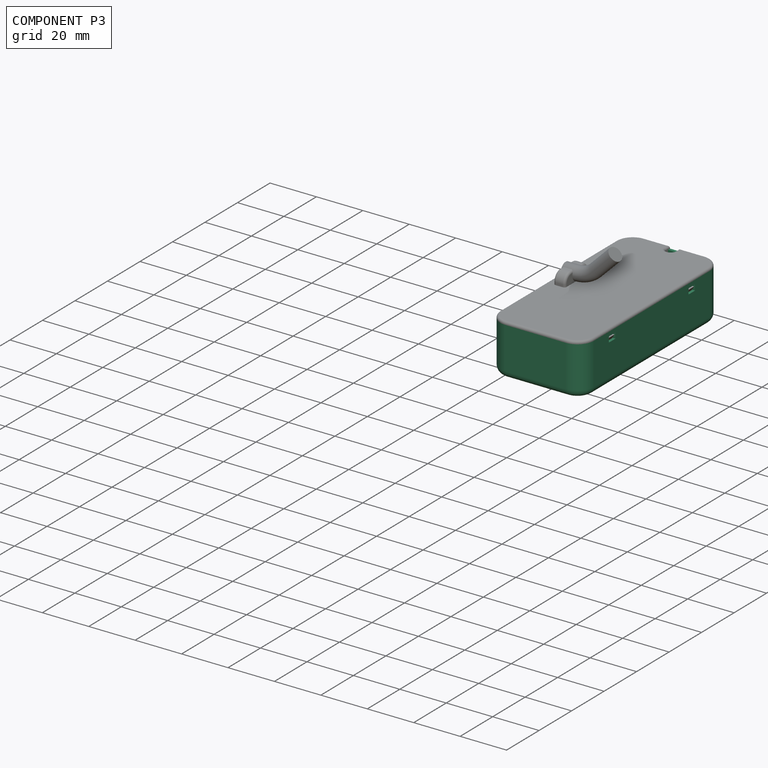
[diagram: component P3 — assembled]
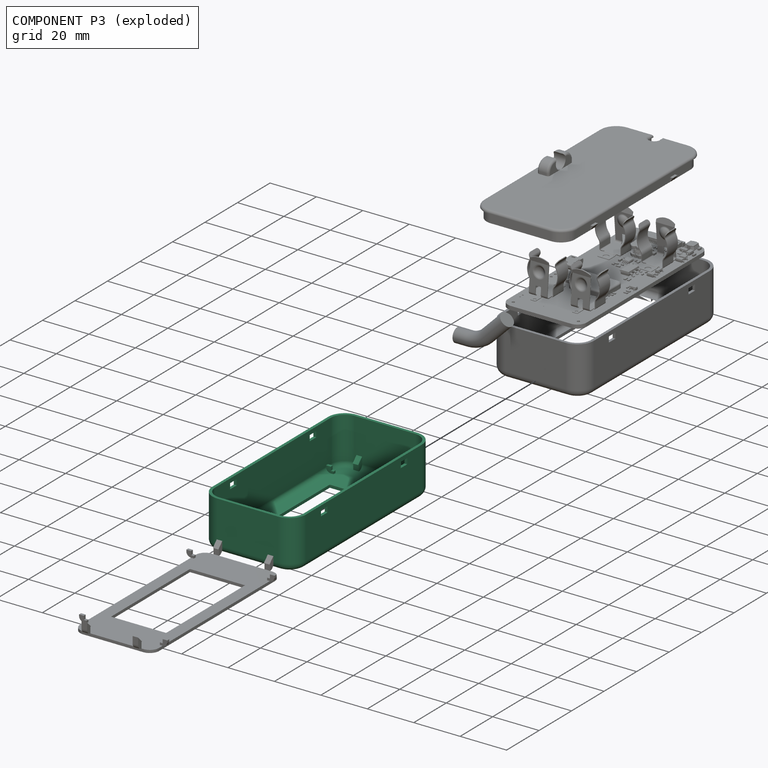
[diagram: component P3 — exploded]
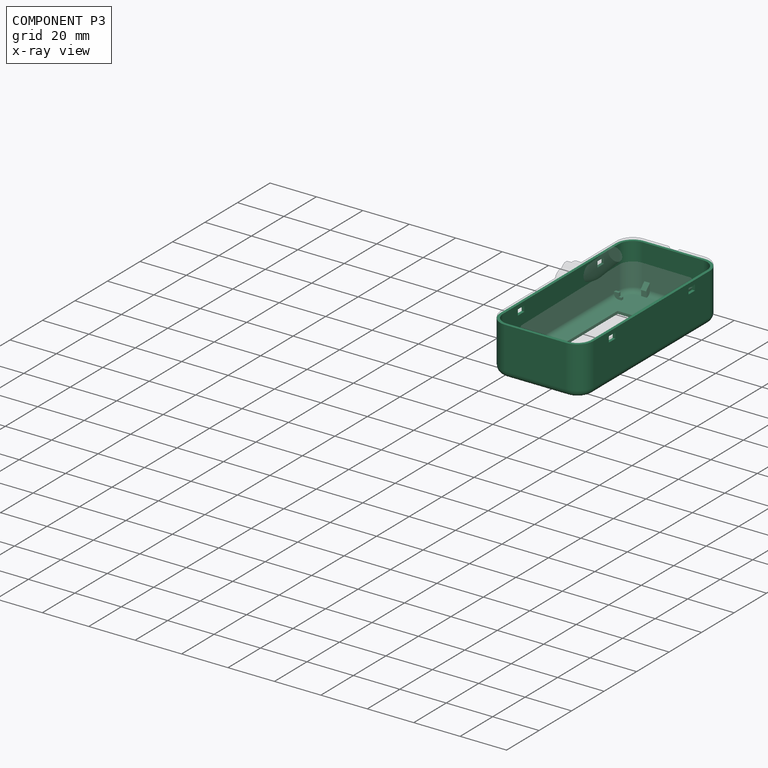
[diagram: component P3 — x-ray view]
COMPONENT P3 — recipe-attached ("main body", modeled in this document).
Held by: resting contact with P0 (derived edge); resting contact with P1 (derived edge); resting contact with P2 (derived edge); resting contact with P4 (derived edge).
Construction recipe (the document's own serialized feature program — sketch geometry with constraints, then the solid features built on it; lengths are millimeters unless a unit is written):

FEATURE [PartDesign::Boolean] Boolean
  ClaimAllChildren = false
  ExportMode = 0
  Group = -> [Reference,Reference001]
  NewSolid = true
  Refine = true
  Suppress = false
  TreeRank = 329
  Type = 3
  _ExportChildren = -> [Reference,Reference001]
  _GroupVersion = 1
FEATURE [Part::SubShapeBinder] Import004  label="Import004(YZ_Plane002)"
  BindCopyOnChange = 0
  BindMode = 0
  ClaimChildren = false
  Context = -> Body002 [Import004.]
  EdgeTolerance = 1e-06
  FillStyle = 0
  Fuse = false
  MakeFace = false
  MergeEdges = true
  OffsetFill = false
  OffsetIntersection = false
  OffsetJoinType = 0
  OffsetOpenResult = false
  Outline = false
  PartialLoad = false
  Relative = true
  SplitEdges = false
  Support = -> [Origin005[YZ_Plane002.]]
  TightBound = false
  TreeRank = 332
  _Version = 8
FEATURE [PartDesign::Body] Body002  label="main body"
  AutoGroupSolids = false
  ClaimAllChildren = false
  ExportMode = 0
  Group = -> [Boolean,Import004]
  Origin = -> Origin006
  Tip = -> Boolean
  TreeRank = 325
  _ExportChildren = -> [Boolean,Import004]
  _GroupVersion = 1
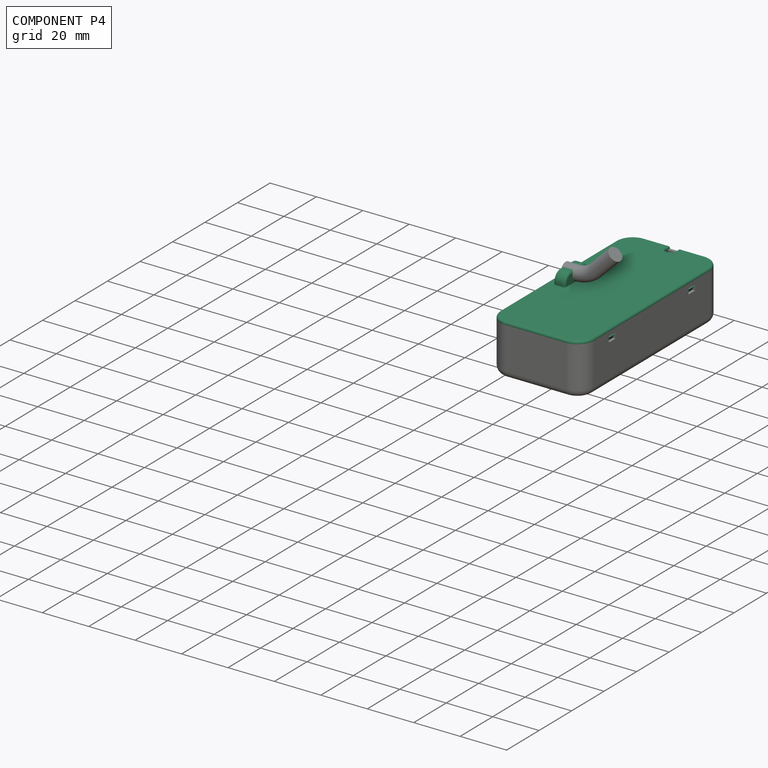
[diagram: component P4 — assembled]
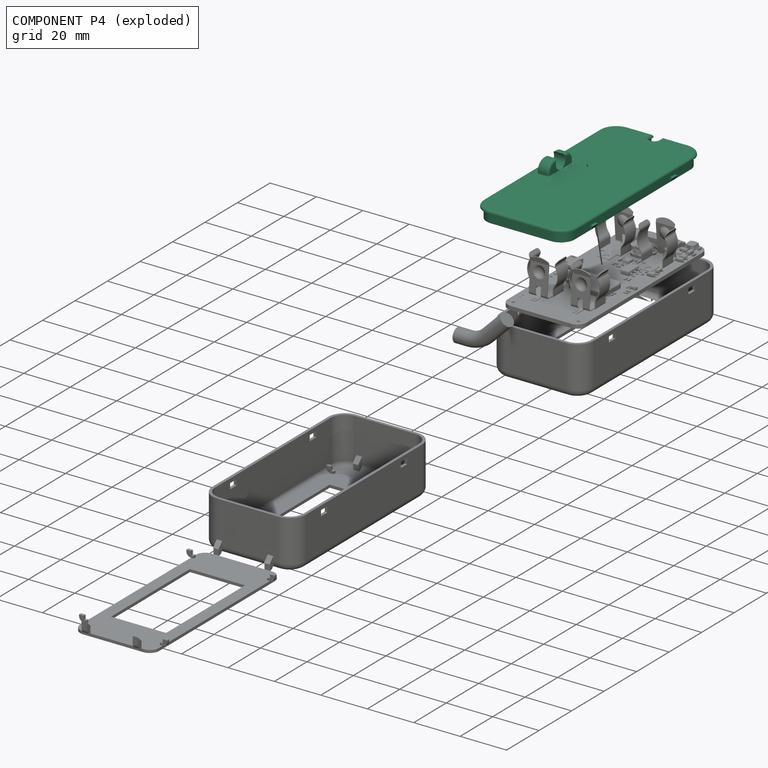
[diagram: component P4 — exploded]
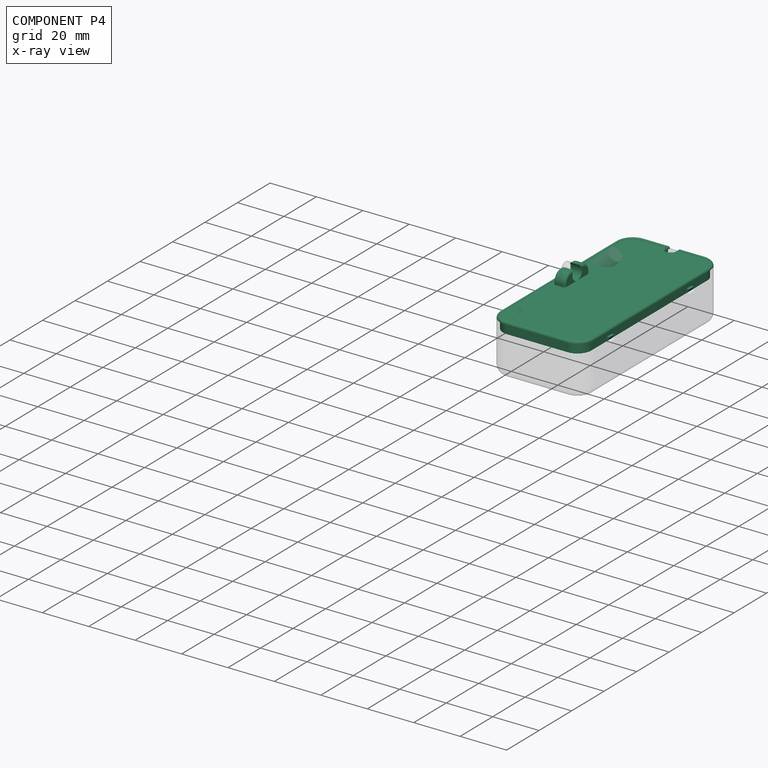
[diagram: component P4 — x-ray view]
COMPONENT P4 — recipe-attached ("cover", modeled in this document).
Held by: resting contact with P1 (derived edge); resting contact with P3 (derived edge); resting contact with P5 (derived edge).
Construction recipe (the document's own serialized feature program — sketch geometry with constraints, then the solid features built on it; lengths are millimeters unless a unit is written):

FEATURE [Part::SubShapeBinder] Import005  label="Import005(Pipe)"
  BindCopyOnChange = 0
  BindMode = 0
  ClaimChildren = false
  Context = -> Body003 [Import005.]
  EdgeTolerance = 1e-06
  FillStyle = 0
  Fuse = false
  MakeFace = false
  MergeEdges = true
  OffsetFill = false
  OffsetIntersection = false
  OffsetJoinType = 0
  OffsetOpenResult = false
  Outline = false
  PartialLoad = false
  Relative = true
  SplitEdges = false
  Support = -> [Body[Pipe.]]
  TightBound = false
  TreeRank = 353
  _Version = 8
FEATURE [PartDesign::Plane] DatumPlane002
  AttachmentSupport = -> [Import005]
  Length = 10
  MapMode = 5
  MinimumLength = 10
  MinimumWidth = 10
  Placement = pos=(0,0,17.4) rot=(0,0,1;0rad)
  ResizeMode = 0
  Support = -> [Import005]
  TreeRank = 352
  Width = 10
FEATURE [Sketcher::SketchObject] Sketch008
  ArcFitTolerance = 1e-06
  AttachmentSupport = -> [DatumPlane002]
  ExternalBSplineMaxDegree = 5
  ExternalBSplineTolerance = 0.0001
  ExternalGeometry = -> [Import005]
  FullyConstrained = true
  InternalTolerance = 1e-06
  MakeInternals = false
  MapMode = 5
  Placement = pos=(0,0,17.4) rot=(0,0,1;0rad)
  Support = -> [DatumPlane002]
  TreeRank = 354
  sketch-geometry (4):
    g0: LineSegment StartX=4 StartY=-9.37157 StartZ=0 EndX=30 EndY=-9.37157 EndZ=0
    g1: LineSegment StartX=37.2 StartY=69 StartZ=0 EndX=37.2 EndY=-2.17157 EndZ=0
    g2: LineSegment StartX=30 StartY=76.2 StartZ=0 EndX=4 EndY=76.2 EndZ=0
    g3: LineSegment StartX=-3.2 StartY=69 StartZ=0 EndX=-3.2 EndY=-2.17157 EndZ=0
  constraints (8):
    c: Coincident(g0,g-13)
    c: Coincident(g0,g-16)
    c: Coincident(g1,g-8)
    c: Coincident(g1,g-16)
    c: Coincident(g2,g-8)
    c: Coincident(g2,g-9)
    c: Coincident(g3,g-9)
    c: Coincident(g3,g-13)
FEATURE [PartDesign::Pad] Pad004
  AddSubType = 0
  AlongSketchNormal = false
  AutoTaperInnerAngle = true
  CheckUpToFaceLimits = true
  ClaimChildren = false
  Direction = (0,0,1)
  Fit = 0
  FitJoin = 0
  InnerFit = 0
  InnerFitJoin = 0
  Length = 1.2
  Length2 = 100
  Linearize = true
  NewSolid = false
  Profile = -> Sketch008
  Refine = true
  Suppress = false
  TaperInnerAngle = 0
  TaperInnerAngleRev = 0
  TreeRank = 355
  Type = 0
  _ProfileBasedVersion = 1
FEATURE [Sketcher::SketchObject] Sketch009
  ArcFitTolerance = 1e-06
  AttachmentSupport = -> [DatumPlane002]
  ExternalBSplineMaxDegree = 5
  ExternalBSplineTolerance = 0.0001
  ExternalGeometry = -> [Import005]
  FullyConstrained = true
  InternalTolerance = 1e-06
  MakeInternals = false
  MapMode = 5
  Placement = pos=(0,0,17.4) rot=(0,0,1;0rad)
  Support = -> [DatumPlane002]
  TreeRank = 357
  sketch-geometry (16):
    g0: LineSegment StartX=-2 StartY=69 StartZ=0 EndX=-2 EndY=-2.17157 EndZ=0
    g1: LineSegment StartX=4 StartY=-8.17157 StartZ=0 EndX=30 EndY=-8.17157 EndZ=0
    g2: ArcOfCircle CenterX=4 CenterY=69 CenterZ=0 NormalX=0 NormalY=0 NormalZ=1 AngleXU=0 Radius=4.8 StartAngle=1.5708 EndAngle=3.14159
    g3: ArcOfCircle CenterX=30 CenterY=69 CenterZ=0 NormalX=0 NormalY=0 NormalZ=1 AngleXU=0 Radius=4.8 StartAngle=-9e-16 EndAngle=1.5708
    g4: ArcOfCircle CenterX=4 CenterY=-2.17157 CenterZ=0 NormalX=0 NormalY=0 NormalZ=1 AngleXU=0 Radius=4.8 StartAngle=3.14159 EndAngle=4.71239
    g5: LineSegment StartX=-0.8 StartY=69 StartZ=0 EndX=-0.8 EndY=-2.17157 EndZ=0
    g6: ArcOfCircle CenterX=30 CenterY=-2.17157 CenterZ=0 NormalX=0 NormalY=0 NormalZ=1 AngleXU=0 Radius=4.8 StartAngle=4.71239 EndAngle=6.28318
    g7: LineSegment StartX=4 StartY=-6.97157 StartZ=0 EndX=30 EndY=-6.97157 EndZ=0
    g8: LineSegment StartX=36 StartY=69 StartZ=0 EndX=36 EndY=-2.17157 EndZ=0
    g9: LineSegment StartX=34.8 StartY=69 StartZ=0 EndX=34.8 EndY=-2.17159 EndZ=0
    g10: LineSegment StartX=4 StartY=75 StartZ=0 EndX=15 EndY=75 EndZ=0
    g11: LineSegment StartX=30 StartY=75 StartZ=0 EndX=19 EndY=75 EndZ=0
    g12: LineSegment StartX=4 StartY=73.8 StartZ=0 EndX=15 EndY=73.8 EndZ=0
    g13: LineSegment StartX=30 StartY=73.8 StartZ=0 EndX=19 EndY=73.8 EndZ=0
    g14: LineSegment StartX=15 StartY=75 StartZ=0 EndX=15 EndY=73.8 EndZ=0
    g15: LineSegment StartX=19 StartY=75 StartZ=0 EndX=19 EndY=73.8 EndZ=0
  constraints (44):
    c: Coincident(g0,g-3)
    c: Coincident(g0,g-6)
    c: Coincident(g1,g-6)
    c: Coincident(g1,g-5)
    c: Coincident(g2,g-3)
    c: Vertical(g-3,g2)
    c: Horizontal(g0,g2)
    c: DistanceY(g2,g-3) = 1.2
    c: Coincident(g3,g-4)
    c: Vertical(g-4,g3)
    c: Horizontal(g3,g3)
    c: Coincident(g4,g-6)
    c: Horizontal(g0,g4)
    c: Vertical(g4,g1)
    c: Coincident(g5,g2)
    c: Vertical(g5)
    c: Coincident(g4,g5)
    c: Coincident(g6,g-5)
    c: Coincident(g7,g4)
    c: Coincident(g7,g6)
    c: Horizontal(g7)
    c: Vertical(g6,g6)
    c: Coincident(g8,g-4)
    c: Coincident(g9,g3)
    c: Vertical(g9)
    c: Coincident(g8,g-5)
    c: Coincident(g6,g9)
    c: Coincident(g10,g-3)
    c: Horizontal(g10)
    c: Coincident(g11,g-4)
    c: Horizontal(g11)
    c: Coincident(g12,g2)
    c: Horizontal(g12)
    c: Coincident(g13,g3)
    c: Horizontal(g13)
    c: Equal(g11,g10)
    c: Equal(g12,g13)
    c: Coincident(g14,g10)
    c: Coincident(g14,g12)
    c: Vertical(g14)
    c: Coincident(g15,g11)
    c: Coincident(g15,g13)
    c: DistanceX(g10,g11) = 4
    c: Equal(g14,g15)
FEATURE [PartDesign::Pad] Pad005
  AddSubType = 0
  AlongSketchNormal = false
  AutoTaperInnerAngle = true
  BaseFeature = -> Pad004
  CheckUpToFaceLimits = true
  ClaimChildren = false
  Direction = (0,0,1)
  Fit = 0
  FitJoin = 0
  InnerFit = 0
  InnerFitJoin = 0
  Length = 4.2
  Length2 = 100
  Linearize = true
  NewSolid = false
  Profile = -> Sketch009
  Refine = true
  Reversed = true
  Suppress = false
  TaperInnerAngle = 0
  TaperInnerAngleRev = 0
  TreeRank = 358
  Type = 0
  _ProfileBasedVersion = 1
FEATURE [PartDesign::Plane] DatumPlane003
  AttachmentSupport = -> [Pad005]
  Length = 40.4
  MapMode = 5
  MinimumLength = 10
  MinimumWidth = 10
  Placement = pos=(0,0,18.6) rot=(0,0,1;0rad)
  ResizeMode = 0
  Support = -> [Pad005]
  TreeRank = 360
  Width = 85.5716
FEATURE [Sketcher::SketchObject] Sketch010
  ArcFitTolerance = 1e-06
  AttachmentSupport = -> [DatumPlane003]
  ExternalBSplineMaxDegree = 5
  ExternalBSplineTolerance = 0.0001
  ExternalGeometry = -> [Sketch009]
  FullyConstrained = true
  InternalTolerance = 1e-06
  MakeInternals = false
  MapMode = 5
  Placement = pos=(0,0,18.6) rot=(0,0,1;0rad)
  Support = -> [DatumPlane003]
  TreeRank = 361
  sketch-geometry (6):
    g0: LineSegment StartX=0 StartY=40.9142 StartZ=0 EndX=5 EndY=40.9142 EndZ=0
    g1: LineSegment StartX=5 StartY=40.9142 StartZ=0 EndX=5 EndY=25.9142 EndZ=0
    g2: LineSegment StartX=5 StartY=25.9142 StartZ=0 EndX=0 EndY=25.9142 EndZ=0
    g3: LineSegment StartX=0 StartY=25.9142 StartZ=0 EndX=0 EndY=40.9142 EndZ=0
    g4: LineSegment [constr] StartX=0 StartY=40.9142 StartZ=0 EndX=0 EndY=75 EndZ=0
    g5: LineSegment [constr] StartX=0 StartY=25.9142 StartZ=0 EndX=0 EndY=-8.17157 EndZ=0
  constraints (18):
    c: Coincident(g0,g1)
    c: Coincident(g1,g2)
    c: Coincident(g2,g3)
    c: Coincident(g3,g0)
    c: Horizontal(g0)
    c: Horizontal(g2)
    c: Vertical(g1)
    c: Vertical(g3)
    c: DistanceX(g0,g0) = 5
    c: DistanceY(g3,g3) = 15
    c: Coincident(g4,g0)
    c: Vertical(g4)
    c: Coincident(g5,g2)
    c: PointOnObject(g5,g-4)
    c: Vertical(g5)
    c: Equal(g5,g4)
    c: PointOnObject(g0,g-2)
    c: Horizontal(g4,g-5)
FEATURE [PartDesign::Pad] Pad006
  AddSubType = 0
  AlongSketchNormal = false
  AutoTaperInnerAngle = true
  BaseFeature = -> Pad005
  CheckUpToFaceLimits = true
  ClaimChildren = false
  Direction = (0,0,1)
  Fit = 0
  FitJoin = 0
  InnerFit = 0
  InnerFitJoin = 0
  Length = 5
  Length2 = 100
  Linearize = true
  NewSolid = false
  Profile = -> Sketch010
  Refine = true
  Suppress = false
  TaperInnerAngle = 0
  TaperInnerAngleRev = 0
  TreeRank = 362
  Type = 0
  _ProfileBasedVersion = 1
FEATURE [PartDesign::Plane] DatumPlane004
  AttachmentSupport = -> [Pad006]
  Length = 85.5716
  MapMode = 5
  MinimumLength = 10
  MinimumWidth = 10
  Placement = pos=(0,0,0) rot=(0.57735,-0.57735,-0.57735;2.0944rad)
  ResizeMode = 0
  Support = -> [Pad006]
  TreeRank = 363
  Width = 23.6
FEATURE [Sketcher::SketchObject] Sketch011
  ArcFitTolerance = 1e-06
  AttachmentSupport = -> [DatumPlane004]
  ExternalBSplineMaxDegree = 5
  ExternalBSplineTolerance = 0.0001
  ExternalGeometry = -> [Pad006]
  FullyConstrained = true
  InternalTolerance = 1e-06
  MakeInternals = false
  MapMode = 5
  Placement = pos=(0,0,0) rot=(0.57735,-0.57735,-0.57735;2.0944rad)
  Support = -> [DatumPlane004]
  TreeRank = 364
  sketch-geometry (4):
    g0: Circle CenterX=-33.4142 CenterY=21.6 CenterZ=0 NormalX=0 NormalY=0 NormalZ=1 AngleXU=0 Radius=3
    g1: LineSegment [constr] StartX=-33.4142 StartY=21.6 StartZ=0 EndX=-33.4142 EndY=23.6 EndZ=0
    g2: LineSegment [constr] StartX=-33.4142 StartY=21.6 StartZ=0 EndX=-25.9142 EndY=21.6 EndZ=0
    g3: LineSegment [constr] StartX=-33.4142 StartY=21.6 StartZ=0 EndX=-40.9142 EndY=21.6 EndZ=0
  constraints (12):
    c: Radius(g0) = 3
    c: Coincident(g1,g0)
    c: PointOnObject(g1,g-3)
    c: Vertical(g1)
    c: DistanceY(g1,g1) = 2
    c: Coincident(g2,g0)
    c: PointOnObject(g2,g-5)
    c: Horizontal(g2)
    c: Coincident(g3,g0)
    c: PointOnObject(g3,g-4)
    c: Horizontal(g3)
    c: Equal(g3,g2)
FEATURE [PartDesign::Pocket] Pocket001
  AddSubType = 1
  AutoTaperInnerAngle = true
  BaseFeature = -> Pad006
  CheckUpToFaceLimits = true
  ClaimChildren = false
  Fit = 0
  FitJoin = 0
  InnerFit = 0
  InnerFitJoin = 0
  Length = 0
  Length2 = 100
  Linearize = true
  NewSolid = false
  Profile = -> Sketch011
  Refine = true
  Suppress = false
  TaperInnerAngle = 0
  TaperInnerAngleRev = 0
  TreeRank = 365
  Type = 2
  _ProfileBasedVersion = 1
  _Version = 1
FEATURE [PartDesign::Plane] DatumPlane009
  AttachmentSupport = -> [Pocket001]
  Length = 40.4
  MapMode = 5
  MinimumLength = 10
  MinimumWidth = 10
  Placement = pos=(0,0,18.6) rot=(0,0,1;0rad)
  ResizeMode = 0
  Support = -> [Pocket001]
  TreeRank = 395
  Width = 85.5716
FEATURE [PartDesign::Fillet] Fillet001
  AddSubType = 0
  Base = -> Pocket001 [Edge106,Edge99]
  BaseFeature = -> Pocket001
  NewSolid = false
  Radius = 4
  Refine = true
  SupportTransform = false
  Suppress = false
  TreeRank = 402
FEATURE [PartDesign::Fillet] Fillet002
  AddSubType = 0
  Base = -> Fillet001 [Edge7,Edge10,Edge17,Edge1,Edge2,Edge4,Edge33,Edge32,Edge36,Edge34,Edge37,Edge31]
  BaseFeature = -> Fillet001
  NewSolid = false
  Radius = 1
  Refine = true
  SupportTransform = false
  Suppress = false
  TreeRank = 403
FEATURE [PartDesign::Plane] DatumPlane010
  AttachmentSupport = -> [Fillet002]
  Length = 40.4
  MapMode = 5
  MinimumLength = 10
  MinimumWidth = 10
  Placement = pos=(0,0,17.4) rot=(1,0,0;3.14159rad)
  ResizeMode = 0
  Support = -> [Fillet002]
  TreeRank = 405
  Width = 85.5716
FEATURE [Sketcher::SketchObject] Sketch015
  ArcFitTolerance = 1e-06
  AttachmentSupport = -> [DatumPlane010]
  ExternalBSplineMaxDegree = 5
  ExternalBSplineTolerance = 0.0001
  ExternalGeometry = -> [Sketch009,Sketch008]
  FullyConstrained = true
  InternalTolerance = 1e-06
  MakeInternals = false
  MapMode = 5
  Placement = pos=(0,0,17.4) rot=(1,0,0;3.14159rad)
  Support = -> [DatumPlane010]
  TreeRank = 406
  sketch-geometry (4):
    g0: ArcOfCircle CenterX=17 CenterY=-73.8 CenterZ=0 NormalX=0 NormalY=0 NormalZ=1 AngleXU=0 Radius=2 StartAngle=1.82e-13 EndAngle=3.14159
    g1: LineSegment StartX=15 StartY=-73.8 StartZ=0 EndX=15 EndY=-76.2 EndZ=0
    g2: LineSegment StartX=19 StartY=-73.8 StartZ=0 EndX=19 EndY=-76.2 EndZ=0
    g3: LineSegment StartX=19 StartY=-76.2 StartZ=0 EndX=15 EndY=-76.2 EndZ=0
  constraints (11):
    c: Coincident(g0,g-3)
    c: Coincident(g0,g-4)
    c: Horizontal(g0,g0)
    c: Coincident(g1,g0)
    c: PointOnObject(g1,g-5)
    c: Vertical(g1)
    c: Coincident(g2,g0)
    c: PointOnObject(g2,g-5)
    c: Vertical(g2)
    c: Coincident(g3,g2)
    c: Coincident(g3,g1)
FEATURE [PartDesign::Pocket] Pocket002
  AddSubType = 1
  AutoTaperInnerAngle = true
  BaseFeature = -> Fillet002
  CheckUpToFaceLimits = true
  ClaimChildren = false
  Fit = 0
  FitJoin = 0
  InnerFit = 0
  InnerFitJoin = 0
  Length = 5
  Length2 = 100
  Linearize = true
  NewSolid = false
  Profile = -> Sketch015
  Refine = true
  Suppress = false
  TaperInnerAngle = 0
  TaperInnerAngleRev = 0
  TreeRank = 407
  Type = 2
  _ProfileBasedVersion = 1
  _Version = 1
FEATURE [PartDesign::Fillet] Fillet
  AddSubType = 0
  Base = -> Pocket002 [Edge31,Edge32,Edge21,Edge22,Edge23,Edge24,Edge25,Edge26,Edge27,Edge28,Edge29,Edge30]
  BaseFeature = -> Pocket002
  NewSolid = false
  Radius = 1
  Refine = true
  SupportTransform = false
  Suppress = false
  TreeRank = 408
FEATURE [PartDesign::Plane] DatumPlane012
  AttachmentSupport = -> [Fillet]
  Length = 85.5716
  MapMode = 5
  MinimumLength = 10
  MinimumWidth = 10
  Placement = pos=(-2,0,0) rot=(0.57735,-0.57735,-0.57735;2.0944rad)
  ResizeMode = 0
  Support = -> [Fillet]
  TreeRank = 420
  Width = 23.6
FEATURE [Part::SubShapeBinder] Import011  label="Import011(clip holes)"
  BindCopyOnChange = 0
  BindMode = 0
  ClaimChildren = false
  Context = -> Body003 [Import011.]
  EdgeTolerance = 1e-06
  FillStyle = 0
  Fuse = false
  MakeFace = false
  MergeEdges = true
  OffsetFill = false
  OffsetIntersection = false
  OffsetJoinType = 0
  OffsetOpenResult = false
  Outline = false
  PartialLoad = false
  Relative = true
  SplitEdges = false
  Support = -> [Body[Sketch016.]]
  TightBound = false
  TreeRank = 422
  _Version = 8
FEATURE [Sketcher::SketchObject] Sketch017
  ArcFitTolerance = 1e-06
  AttachmentSupport = -> [DatumPlane012]
  ExternalBSplineMaxDegree = 5
  ExternalBSplineTolerance = 0.0001
  ExternalGeometry = -> [Import011]
  FullyConstrained = true
  InternalTolerance = 1e-06
  MakeInternals = false
  MapMode = 5
  Placement = pos=(-2,0,0) rot=(0.57735,-0.57735,-0.57735;2.0944rad)
  Support = -> [DatumPlane012]
  TreeRank = 421
  sketch-geometry (8):
    g0: LineSegment StartX=-56.4142 StartY=15 StartZ=0 EndX=-56.4142 EndY=13.2 EndZ=0
    g1: LineSegment StartX=-59.4142 StartY=15 StartZ=0 EndX=-59.4142 EndY=13.2 EndZ=0
    g2: LineSegment StartX=-10.4142 StartY=15 StartZ=0 EndX=-10.4142 EndY=13.2 EndZ=0
    g3: LineSegment StartX=-59.4142 StartY=13.2 StartZ=0 EndX=-56.4142 EndY=13.2 EndZ=0
    g4: LineSegment StartX=-10.4142 StartY=13.2 StartZ=0 EndX=-7.41421 EndY=13.2 EndZ=0
    g5: LineSegment StartX=-10.4142 StartY=15 StartZ=0 EndX=-7.41421 EndY=15 EndZ=0
    g6: LineSegment StartX=-59.4142 StartY=15 StartZ=0 EndX=-56.4142 EndY=15 EndZ=0
    g7: LineSegment StartX=-7.41421 StartY=15 StartZ=0 EndX=-7.41421 EndY=13.2 EndZ=0
  constraints (24):
    c: PointOnObject(g0,g-3)
    c: Vertical(g0)
    c: PointOnObject(g1,g-3)
    c: Vertical(g1)
    c: DistanceX(g-5,g1) = 0.5
    c: DistanceX(g0,g-4) = 0.5
    c: PointOnObject(g4,g-6)
    c: PointOnObject(g2,g-6)
    c: Vertical(g2)
    c: DistanceX(g-8,g2) = 0.5
    c: DistanceX(g4,g-7) = 0.5
    c: Coincident(g3,g1)
    c: Coincident(g3,g0)
    c: Coincident(g4,g2)
    c: Coincident(g5,g2)
    c: Horizontal(g5)
    c: DistanceY(g4,g5) = 1.8
    c: Coincident(g6,g1)
    c: Coincident(g6,g0)
    c: Horizontal(g6)
    c: DistanceY(g1,g1) = 1.8
    c: Coincident(g7,g5)
    c: Coincident(g7,g4)
    c: Vertical(g7)
FEATURE [PartDesign::Pad] Pad007
  AddSubType = 0
  AlongSketchNormal = false
  AutoTaperInnerAngle = true
  BaseFeature = -> Fillet
  CheckUpToFaceLimits = true
  ClaimChildren = false
  Direction = (-1,0,0)
  Fit = 0
  FitJoin = 0
  InnerFit = 0
  InnerFitJoin = 0
  Length = 1.2
  Length2 = 0
  Linearize = true
  NewSolid = false
  Profile = -> Sketch017
  Refine = true
  Suppress = false
  TaperInnerAngle = 0
  TaperInnerAngleRev = 0
  TreeRank = 423
  Type = 0
  _ProfileBasedVersion = 1
FEATURE [PartDesign::Plane] DatumPlane013
  AttachmentSupport = -> [Pad007]
  Length = 85.5716
  MapMode = 5
  MinimumLength = 10
  MinimumWidth = 10
  Placement = pos=(36,0,0) rot=(0.57735,0.57735,0.57735;2.0944rad)
  ResizeMode = 0
  Support = -> [Pad007]
  TreeRank = 424
  Width = 23.6
FEATURE [Sketcher::SketchObject] Sketch018
  ArcFitTolerance = 1e-06
  AttachmentSupport = -> [DatumPlane013]
  ExternalBSplineMaxDegree = 5
  ExternalBSplineTolerance = 0.0001
  ExternalGeometry = -> [Sketch017]
  FullyConstrained = true
  InternalTolerance = 1e-06
  MakeInternals = false
  MapMode = 5
  Placement = pos=(36,0,0) rot=(0.57735,0.57735,0.57735;2.0944rad)
  Support = -> [DatumPlane013]
  TreeRank = 425
FEATURE [PartDesign::Pad] Pad008
  AddSubType = 0
  AlongSketchNormal = false
  AutoTaperInnerAngle = true
  BaseFeature = -> Pad007
  CheckUpToFaceLimits = true
  ClaimChildren = false
  Direction = (1,0,0)
  Fit = 0
  FitJoin = 0
  InnerFit = 0
  InnerFitJoin = 0
  Length = 1.2
  Length2 = 100
  Linearize = true
  NewSolid = false
  Profile = -> Sketch018
  Refine = true
  Suppress = false
  TaperInnerAngle = 0
  TaperInnerAngleRev = 0
  TreeRank = 426
  Type = 0
  _ProfileBasedVersion = 1
FEATURE [PartDesign::Plane] DatumPlane014
  AttachmentSupport = -> [Pad008]
  Length = 40.4
  MapMode = 5
  MinimumLength = 10
  MinimumWidth = 10
  Placement = pos=(6e-16,-8.17157,0) rot=(1,0,0;1.5708rad)
  ResizeMode = 0
  Support = -> [Pad008]
  TreeRank = 427
  Width = 23.6
FEATURE [Sketcher::SketchObject] Sketch019
  ArcFitTolerance = 1e-06
  AttachmentSupport = -> [DatumPlane014]
  ExternalBSplineMaxDegree = 5
  ExternalBSplineTolerance = 0.0001
  ExternalGeometry = -> [Sketch017,Sketch018]
  FullyConstrained = true
  InternalTolerance = 1e-06
  MakeInternals = false
  MapMode = 5
  Placement = pos=(6e-16,-8.17157,0) rot=(1,0,0;1.5708rad)
  Support = -> [DatumPlane014]
  TreeRank = 428
  sketch-geometry (6):
    g0: LineSegment StartX=37.2 StartY=15 StartZ=0 EndX=36 EndY=13.2 EndZ=0
    g1: LineSegment StartX=-3.2 StartY=15 StartZ=0 EndX=-2 EndY=13.2 EndZ=0
    g2: LineSegment StartX=-3.2 StartY=15 StartZ=0 EndX=-3.2 EndY=13.2 EndZ=0
    g3: LineSegment StartX=-3.2 StartY=13.2 StartZ=0 EndX=-2 EndY=13.2 EndZ=0
    g4: LineSegment StartX=36 StartY=13.2 StartZ=0 EndX=37.2 EndY=13.2 EndZ=0
    g5: LineSegment StartX=37.2 StartY=15 StartZ=0 EndX=37.2 EndY=13.2 EndZ=0
  constraints (16):
    c: Horizontal(g1,g-3)
    c: DistanceX(g1,g-3) = 1.2
    c: Coincident(g1,g-3)
    c: Coincident(g2,g1)
    c: Vertical(g2)
    c: Coincident(g3,g2)
    c: Coincident(g3,g1)
    c: Horizontal(g3)
    c: Coincident(g4,g0)
    c: Horizontal(g4)
    c: Coincident(g5,g0)
    c: Coincident(g5,g4)
    c: Vertical(g5)
    c: Horizontal(g-4,g0)
    c: Coincident(g0,g-4)
    c: Equal(g3,g4)
FEATURE [PartDesign::Pocket] Pocket004
  AddSubType = 1
  AutoTaperInnerAngle = true
  BaseFeature = -> Pad008
  CheckUpToFaceLimits = true
  ClaimChildren = false
  Fit = 0
  FitJoin = 0
  InnerFit = 0
  InnerFitJoin = 0
  Length = 5
  Length2 = 100
  Linearize = true
  NewSolid = false
  Profile = -> Sketch019
  Refine = true
  Suppress = false
  TaperInnerAngle = 0
  TaperInnerAngleRev = 0
  TreeRank = 431
  Type = 1
  _ProfileBasedVersion = 1
  _Version = 1
FEATURE [PartDesign::Body] Body003  label="cover"
  AutoGroupSolids = false
  ClaimAllChildren = false
  ExportMode = 0
  Group = -> [DatumPlane002,Import005,Sketch008,Pad004,Sketch009,Pad005,DatumPlane003,Sketch010,Pad006,DatumPlane004,Sketch011,Pocket001,DatumPlane009,Fillet001,Fillet002,DatumPlane010,Sketch015,Pocket002,Fillet,DatumPlane012,Sketch017,Import011,Pad007,DatumPlane013,Sketch018,Pad008,DatumPlane014,Sketch019,Pocket004]
  Origin = -> Origin007
  Tip = -> Pocket004
  TreeRank = 347
  _ExportChildren = -> [DatumPlane002,Import005,Pad004,Pad005,DatumPlane003,Pad006,DatumPlane004,Pocket001,DatumPlane009,Fillet001,Fillet002,DatumPlane010,Pocket002,Fillet,DatumPlane012,Import011,Pad007,DatumPlane013,Pad008,DatumPlane014,Pocket004]
  _GroupVersion = 1
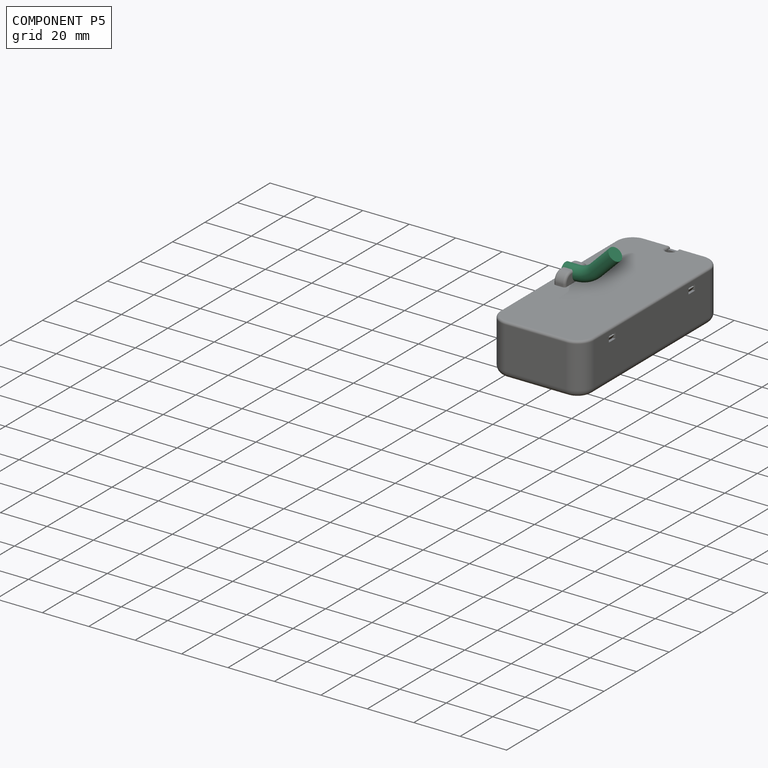
[diagram: component P5 — assembled]
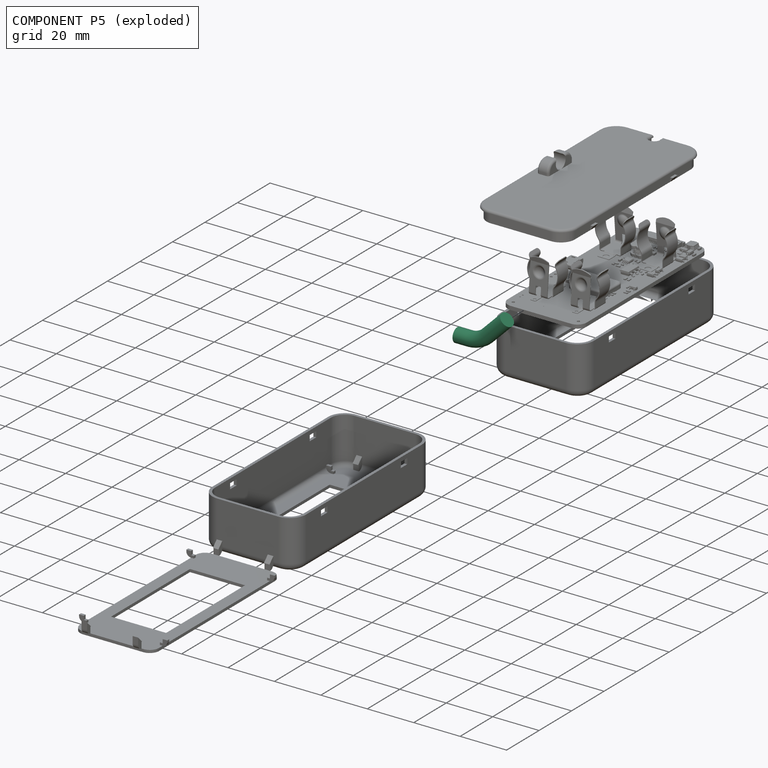
[diagram: component P5 — exploded]
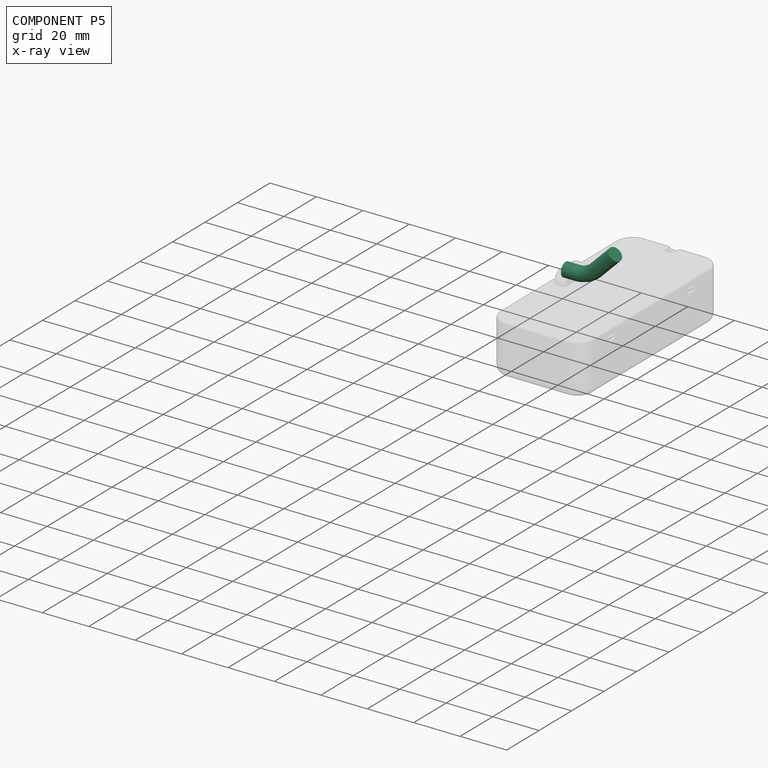
[diagram: component P5 — x-ray view]
COMPONENT P5 — recipe-attached ("kronschtein1", modeled in this document).
Held by: resting contact with P4 (derived edge).
Construction recipe (the document's own serialized feature program — sketch geometry with constraints, then the solid features built on it; lengths are millimeters unless a unit is written):

FEATURE [Part::SubShapeBinder] Import006  label="Import006(Sketch010)"
  BindCopyOnChange = 0
  BindMode = 0
  ClaimChildren = false
  Context = -> Body004 [Import006.]
  EdgeTolerance = 1e-06
  FillStyle = 0
  Fuse = false
  MakeFace = false
  MergeEdges = true
  OffsetFill = false
  OffsetIntersection = false
  OffsetJoinType = 0
  OffsetOpenResult = false
  Outline = false
  PartialLoad = false
  Relative = true
  SplitEdges = false
  Support = -> [Body003[Sketch010.]]
  TightBound = false
  TreeRank = 385
  _Version = 8
FEATURE [Part::SubShapeBinder] Import007  label="Import007(Sketch011)"
  BindCopyOnChange = 0
  BindMode = 0
  ClaimChildren = false
  Context = -> Body004 [Import007.]
  EdgeTolerance = 1e-06
  FillStyle = 0
  Fuse = false
  MakeFace = false
  MergeEdges = true
  OffsetFill = false
  OffsetIntersection = false
  OffsetJoinType = 0
  OffsetOpenResult = false
  Outline = false
  PartialLoad = false
  Relative = true
  SplitEdges = false
  Support = -> [Body003[Sketch011.]]
  TightBound = false
  TreeRank = 386
  _Version = 8
FEATURE [PartDesign::Plane] DatumPlane008
  AttachmentSupport = -> [Pocket001]
  Length = 16.537
  MapMode = 45
  MinimumLength = 10
  MinimumWidth = 10
  Placement = pos=(0,28.4383,20.9969) rot=(0.679647,0.275973,0.679647;2.60305rad)
  ResizeMode = 0
  Support = -> [Pocket001]
  TreeRank = 391
  Width = 16.6658
FEATURE [Sketcher::SketchObject] Sketch014
  ArcFitTolerance = 1e-06
  AttachmentSupport = -> [DatumPlane008]
  ExternalBSplineMaxDegree = 5
  ExternalBSplineTolerance = 0.0001
  ExternalGeometry = -> [Import007]
  FullyConstrained = true
  InternalTolerance = 1e-06
  MakeInternals = false
  MapMode = 5
  Placement = pos=(0,28.4383,20.9969) rot=(0.679647,0.275973,0.679647;2.60305rad)
  Support = -> [DatumPlane008]
  TreeRank = 393
FEATURE [PartDesign::Plane] DatumPlane007
  AttachmentSupport = -> [XZ_Plane005,Fillet002]
  Length = 10
  MapMode = 6
  MinimumLength = 10
  MinimumWidth = 10
  Placement = pos=(5,-7.1e-15,18.6) rot=(0.57735,-0.57735,0.57735;2.0944rad)
  ResizeMode = 0
  Support = -> [XZ_Plane005,Fillet002]
  TreeRank = 383
  Width = 10
FEATURE [Part::SubShapeBinder] Import008  label="Import008(Fillet002)"
  BindCopyOnChange = 0
  BindMode = 0
  ClaimChildren = false
  Context = -> Body004 [Import008.]
  EdgeTolerance = 1e-06
  FillStyle = 0
  Fuse = false
  MakeFace = false
  MergeEdges = true
  OffsetFill = false
  OffsetIntersection = false
  OffsetJoinType = 0
  OffsetOpenResult = false
  Outline = false
  PartialLoad = false
  Relative = true
  SplitEdges = false
  Support = -> [Body003[Fillet002.]]
  TightBound = false
  TreeRank = 404
  _Version = 8
FEATURE [Part::SubShapeBinder] Import010  label="Import010(Pipe)"
  BindCopyOnChange = 0
  BindMode = 0
  ClaimChildren = false
  Context = -> Body004 [Import010.]
  EdgeTolerance = 1e-06
  FillStyle = 0
  Fuse = false
  MakeFace = false
  MergeEdges = true
  OffsetFill = false
  OffsetIntersection = false
  OffsetJoinType = 0
  OffsetOpenResult = false
  Outline = false
  PartialLoad = false
  Relative = true
  SplitEdges = false
  Support = -> [Body[Pipe.]]
  TightBound = false
  TreeRank = 416
  _Version = 8
FEATURE [Sketcher::SketchObject] Sketch013
  ArcFitTolerance = 1e-06
  AttachmentSupport = -> [DatumPlane007]
  ExternalBSplineMaxDegree = 5
  ExternalBSplineTolerance = 0.0001
  ExternalGeometry = -> [Import006,Sketch014,Import010]
  FullyConstrained = true
  InternalTolerance = 1e-06
  MakeInternals = false
  MapMode = 5
  Placement = pos=(5,-7.1e-15,18.6) rot=(-0.57735,0.57735,-0.57735;4.18879rad)
  Support = -> [DatumPlane007]
  TreeRank = 384
  sketch-geometry (5):
    g0: GeomPoint [constr] X=3.00855 Y=5 Z=0
    g1: LineSegment [constr] StartX=-1.2 StartY=-32.2 StartZ=0 EndX=27.0843 EndY=-3.91573 EndZ=0
    g2: LineSegment StartX=3.00855 StartY=5 StartZ=0 EndX=3.00855 EndY=0 EndZ=0
    g3: LineSegment StartX=6.40448 StartY=-8.19851 StartZ=0 EndX=14.603 EndY=-16.397 EndZ=0
    g4: ArcOfCircle CenterX=14.603 CenterY=0 CenterZ=0 NormalX=0 NormalY=0 NormalZ=1 AngleXU=0 Radius=11.5944 StartAngle=3.14159 EndAngle=3.92699
  constraints (12):
    c: Angle(g1,g-2) = 0.785398
    c: Distance(g1) = 40
    c: Coincident(g2,g0)
    c: Vertical(g2)
    c: PointOnObject(g3,g1)
    c: Perpendicular(g1,g3)
    c: Symmetric(g-4,g-4,g2)
    c: Tangent(g2,g4) = -1.5708
    c: Tangent(g3,g4) = -1.5708
    c: PointOnObject(g4,g-1)
    c: Vertical(g4,g3)
    c: Coincident(g-5,g1)
FEATURE [PartDesign::AdditivePipe] Pipe001
  AddSubType = 0
  AuxilleryCurvelinear = true
  AuxillerySpineTangent = false
  Binormal = (0,0,0)
  ClaimChildren = false
  Fit = 0
  FitJoin = 0
  InnerFit = 0
  InnerFitJoin = 0
  Linearize = true
  Mode = 0
  MoveProfile = false
  NewSolid = false
  Profile = -> Sketch014
  Refine = true
  RotateProfile = false
  Spine = -> Sketch013 [Edge1,Edge2,Edge3]
  SpineTangent = false
  Suppress = false
  Transformation = 0
  Transition = 1
  TreeRank = 394
  _ProfileBasedVersion = 2
FEATURE [PartDesign::Body] Body004  label="kronschtein1"
  AutoGroupSolids = false
  ClaimAllChildren = false
  ExportMode = 0
  Group = -> [DatumPlane007,Sketch013,Import006,Import007,DatumPlane008,Sketch014,Pipe001,Import008,Import010]
  Origin = -> Origin008
  Tip = -> Pipe001
  TreeRank = 381
  _ExportChildren = -> [DatumPlane007,Import006,Import007,DatumPlane008,Pipe001,Import008,Import010]
  _GroupVersion = 1
PROVENANCE & LICENSES
Assembly and component geometry: a FreeCAD (.FCStd) document from a public repository crawl; components, placements and joints were extracted with FreeCAD and each solid tessellated.
Construction recipes: the document's own serialized feature recipes (and, for linked parts, the recipes of companion documents from the same project).
License: as declared in the source repository (recorded in the dataset sidecar).
Joints: native FreeCAD joints and A2plus constraints are mapped to standard mate types; edges marked 'derived from contact' connect touching components and are measured from the geometry, not modeled.
Verification: 5 of this assembly's 6 components carry a construction recipe (5 from this document itself); the rest are geometry-only. Every component's tessellation passed the extraction mesh gates (mesh-volume checksum against the B-rep where available, bounding-box inflation <= 2%).
Renders: orthographic iso camera (az 35 / el 25); the floor grid conveys scale (grid pitch printed in each image; no ruler). In the exploded view each component is displaced by its stored offset vector: the offsets alone carry the explosion direction (mate normal/axis signs are not orientation cues and do not encode it), and separation distances are assigned per mate-chain, not proportionally to assembly-order depth.
